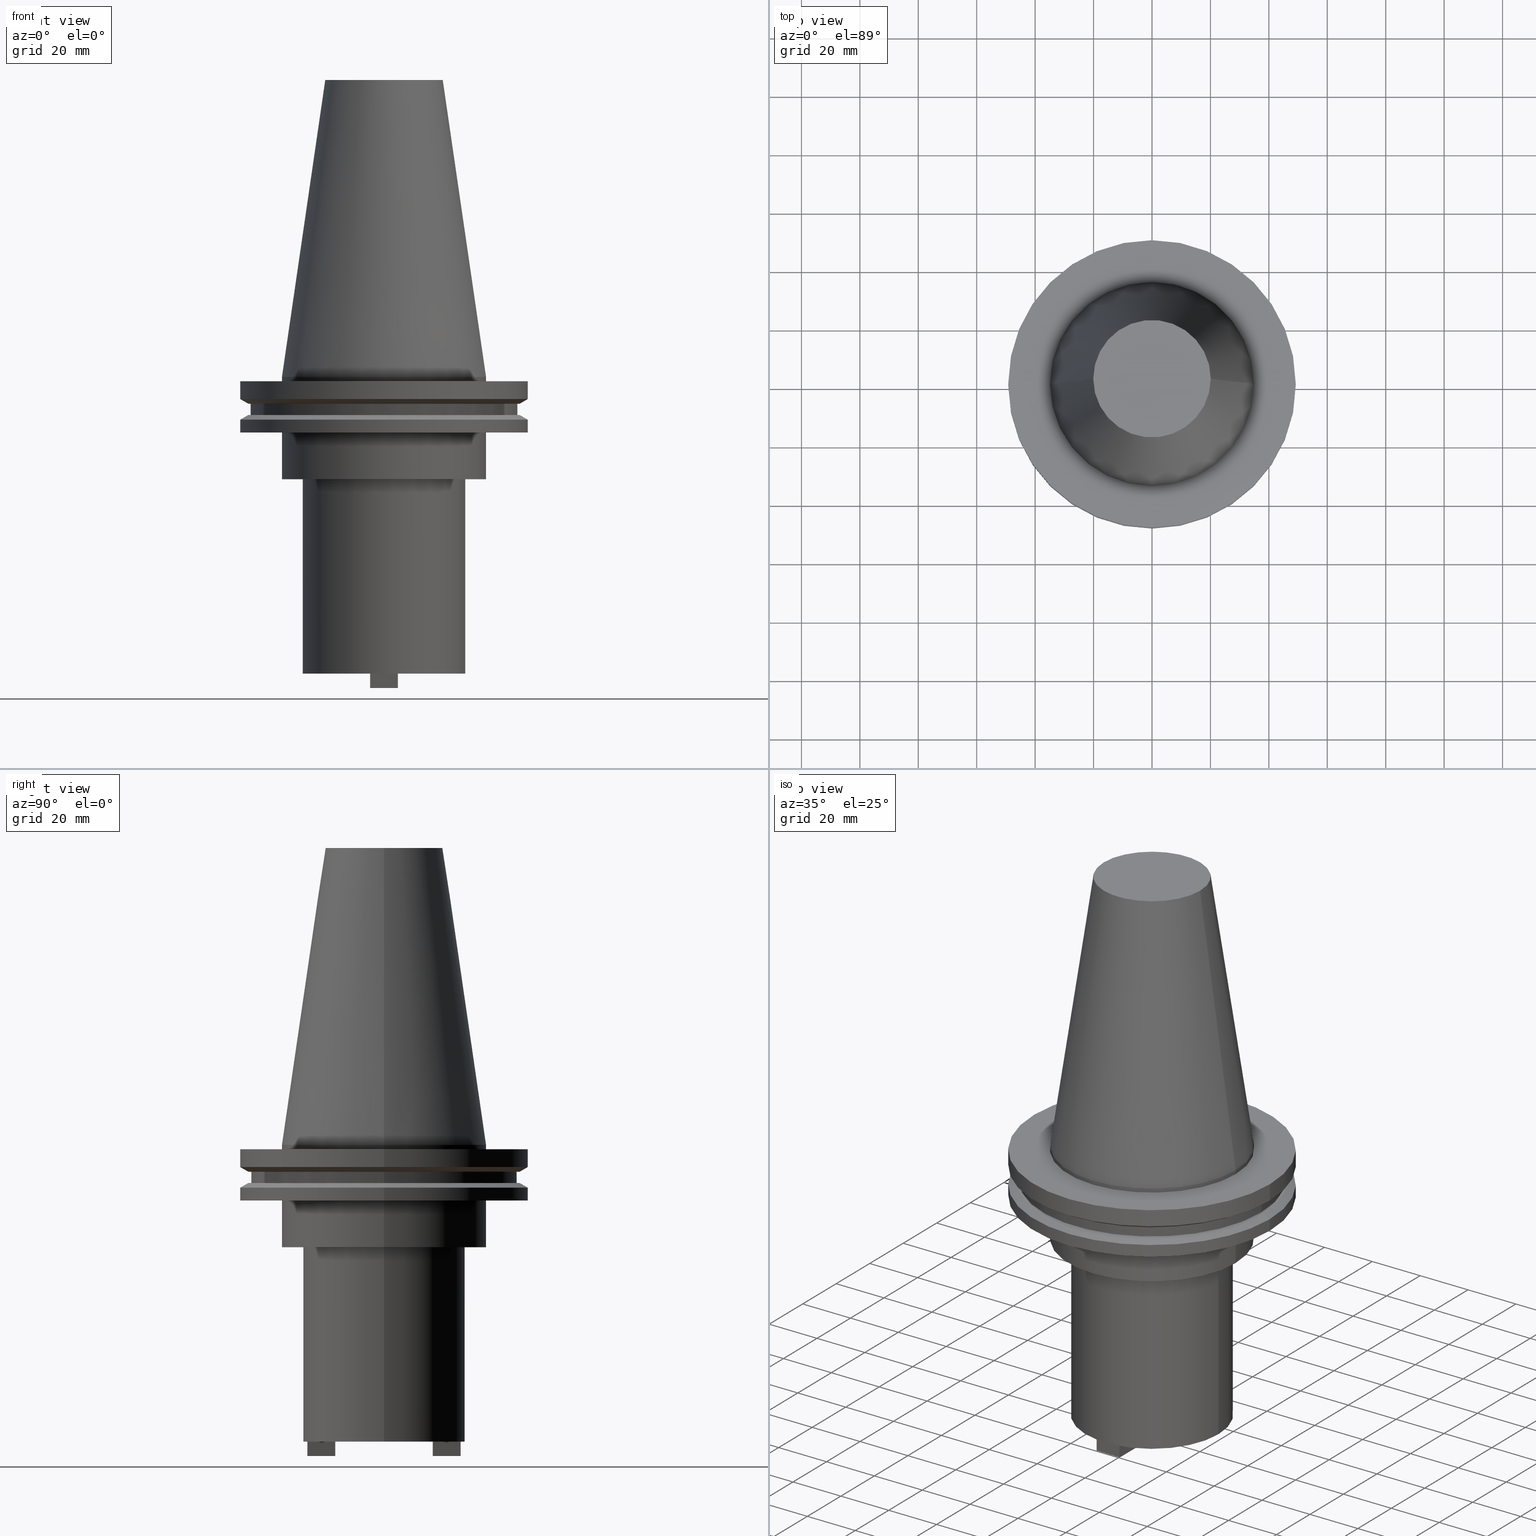
[diagram: canonical four-view strip — front | top / right | iso, engineering-drawing reading convention]
A machine part, canonical four-view strip (front | top / right | iso — engineering-drawing reading convention). The complete STEP part file that produces these views, byte-faithful:
ISO-10303-21;
HEADER;
FILE_DESCRIPTION (( 'STEP AP203' ),
    '1' );
FILE_NAME ('BCV50-SMC1_000-4.stp',
    '2022-03-03T19:53:59',
    ( '' ),
    ( '' ),
    'SwSTEP 2.0',
    'SolidWorks 2021',
    '' );
FILE_SCHEMA (( 'CONFIG_CONTROL_DESIGN' ));
ENDSEC;

DATA;
#1 = EDGE_CURVE ( 'NONE', #269, #75, #1081, .T. ) ;
#2 = CARTESIAN_POINT ( 'NONE',  ( -46.43919780457007818, 0.000000000000000000, -13.05499999999999794 ) ) ;
#3 = FACE_OUTER_BOUND ( 'NONE', #20, .T. ) ;
#4 = ORIENTED_EDGE ( 'NONE', *, *, #239, .T. ) ;
#5 = CARTESIAN_POINT ( 'NONE',  ( -49.21499999999998920, 6.027099222003697037E-15, -14.65761014474876944 ) ) ;
#6 = EDGE_CURVE ( 'NONE', #766, #273, #462, .T. ) ;
#7 = CARTESIAN_POINT ( 'NONE',  ( 0.000000000000000000, 0.000000000000000000, 101.5999999999999943 ) ) ;
#8 = CARTESIAN_POINT ( 'NONE',  ( 0.000000000000000000, 34.92499999999999716, -35.04999999999999716 ) ) ;
#9 = ORIENTED_EDGE ( 'NONE', *, *, #379, .F. ) ;
#10 = COORDINATED_UNIVERSAL_TIME_OFFSET ( 6, 0, .BEHIND. ) ;
#11 = AXIS2_PLACEMENT_3D ( 'NONE', #192, #457, #791 ) ;
#12 = CIRCLE ( 'NONE', #299, 49.21499999999999631 ) ;
#13 = ORGANIZATION ( 'UNSPECIFIED', 'UNSPECIFIED', '' ) ;
#14 = ADVANCED_FACE ( 'NONE', ( #1042 ), #526, .T. ) ;
#15 = FACE_OUTER_BOUND ( 'NONE', #286, .T. ) ;
#16 = ORIENTED_EDGE ( 'NONE', *, *, #546, .F. ) ;
#17 = ORIENTED_EDGE ( 'NONE', *, *, #738, .T. ) ;
#18 = CARTESIAN_POINT ( 'NONE',  ( -4.762500000000019718, -16.68249999999999389, -106.5000000000000000 ) ) ;
#19 = EDGE_CURVE ( 'NONE', #910, #402, #885, .T. ) ;
#20 = EDGE_LOOP ( 'NONE', ( #708, #105, #877, #809 ) ) ;
#21 = ORIENTED_EDGE ( 'NONE', *, *, #1074, .T. ) ;
#22 = FACE_OUTER_BOUND ( 'NONE', #803, .T. ) ;
#23 = ORIENTED_EDGE ( 'NONE', *, *, #191, .T. ) ;
#24 = CARTESIAN_POINT ( 'NONE',  ( -46.43919780457007818, 5.687161494633754392E-15, -9.204999999999991189 ) ) ;
#25 = CIRCLE ( 'NONE', #990, 49.21500000000000341 ) ;
#26 = VECTOR ( 'NONE', #1047, 1000.000000000000000 ) ;
#27 = AXIS2_PLACEMENT_3D ( 'NONE', #828, #222, #144 ) ;
#28 = LINE ( 'NONE', #879, #26 ) ;
#29 = ORIENTED_EDGE ( 'NONE', *, *, #455, .F. ) ;
#30 = PERSON_AND_ORGANIZATION_ROLE ( 'design_supplier' ) ;
#31 = CC_DESIGN_PERSON_AND_ORGANIZATION_ASSIGNMENT ( #435, #354, ( #251 ) ) ;
#32 = ORIENTED_EDGE ( 'NONE', *, *, #539, .F. ) ;
#33 = LINE ( 'NONE', #1039, #338 ) ;
#34 = FACE_OUTER_BOUND ( 'NONE', #287, .T. ) ;
#35 = EDGE_LOOP ( 'NONE', ( #4, #164 ) ) ;
#36 = DATE_AND_TIME ( #204, #872 ) ;
#37 = ORIENTED_EDGE ( 'NONE', *, *, #902, .T. ) ;
#38 = CARTESIAN_POINT ( 'NONE',  ( 4.762499999999981526, 26.20750000000001734, -106.5000000000000000 ) ) ;
#39 = EDGE_CURVE ( 'NONE', #75, #269, #111, .T. ) ;
#40 = DIRECTION ( 'NONE',  ( 6.374311985216615162E-16, -1.000000000000000000, 0.000000000000000000 ) ) ;
#41 = ORIENTED_EDGE ( 'NONE', *, *, #184, .F. ) ;
#42 = LINE ( 'NONE', #293, #65 ) ;
#43 = AXIS2_PLACEMENT_3D ( 'NONE', #142, #729, #488 ) ;
#44 = CC_DESIGN_PERSON_AND_ORGANIZATION_ASSIGNMENT ( #260, #431, ( #746 ) ) ;
#45 = AXIS2_PLACEMENT_3D ( 'NONE', #1013, #240, #1086 ) ;
#46 = CARTESIAN_POINT ( 'NONE',  ( 0.000000000000000000, 0.000000000000000000, -35.04999999999999716 ) ) ;
#47 = AXIS2_PLACEMENT_3D ( 'NONE', #416, #750, #925 ) ;
#48 = ORIENTED_EDGE ( 'NONE', *, *, #473, .T. ) ;
#49 = ORIENTED_EDGE ( 'NONE', *, *, #239, .F. ) ;
#50 = CARTESIAN_POINT ( 'NONE',  ( 0.000000000000000000, 0.000000000000000000, -101.5999999999999943 ) ) ;
#51 = DIRECTION ( 'NONE',  ( -0.000000000000000000, -0.000000000000000000, 1.000000000000000000 ) ) ;
#52 = CARTESIAN_POINT ( 'NONE',  ( 0.000000000000000000, 0.000000000000000000, -35.04999999999999716 ) ) ;
#53 = EDGE_CURVE ( 'NONE', #258, #822, #384, .T. ) ;
#54 = VERTEX_POINT ( 'NONE', #863 ) ;
#55 = DIRECTION ( 'NONE',  ( 1.000000000000000000, 0.000000000000000000, 0.000000000000000000 ) ) ;
#56 = DIRECTION ( 'NONE',  ( -1.000000000000000000, 0.000000000000000000, -0.000000000000000000 ) ) ;
#57 = CARTESIAN_POINT ( 'NONE',  ( 4.762499999999981526, 26.20750000000001734, -101.5999999999999943 ) ) ;
#58 = EDGE_CURVE ( 'NONE', #752, #106, #698, .T. ) ;
#59 = VERTEX_POINT ( 'NONE', #721 ) ;
#60 = CARTESIAN_POINT ( 'NONE',  ( 0.000000000000000000, 0.000000000000000000, -14.65761014474876944 ) ) ;
#61 = VECTOR ( 'NONE', #405, 1000.000000000000000 ) ;
#62 = DIRECTION ( 'NONE',  ( 1.000000000000000000, 0.000000000000000000, 0.000000000000000000 ) ) ;
#63 = CONICAL_SURFACE ( 'NONE', #674, 46.43919780457007818, 1.047197551196575205 ) ;
#64 = CARTESIAN_POINT ( 'NONE',  ( -45.64500000000000313, 5.589900314708094957E-15, -13.05499999999999794 ) ) ;
#65 = VECTOR ( 'NONE', #961, 1000.000000000000000 ) ;
#66 = VERTEX_POINT ( 'NONE', #831 ) ;
#67 = DIRECTION ( 'NONE',  ( -1.456985596620939003E-15, -1.000000000000000000, 0.000000000000000000 ) ) ;
#68 = LINE ( 'NONE', #400, #81 ) ;
#69 = DIRECTION ( 'NONE',  ( -0.000000000000000000, -0.000000000000000000, 1.000000000000000000 ) ) ;
#70 = EDGE_LOOP ( 'NONE', ( #122, #666 ) ) ;
#71 = DIRECTION ( 'NONE',  ( -2.731847993664259274E-16, 1.000000000000000000, 0.000000000000000000 ) ) ;
#72 = EDGE_CURVE ( 'NONE', #759, #453, #722, .T. ) ;
#73 = DIRECTION ( 'NONE',  ( -0.000000000000000000, -0.000000000000000000, 1.000000000000000000 ) ) ;
#74 = CARTESIAN_POINT ( 'NONE',  ( 0.000000000000000000, 0.000000000000000000, -9.204999999999991189 ) ) ;
#75 = VERTEX_POINT ( 'NONE', #566 ) ;
#76 = CYLINDRICAL_SURFACE ( 'NONE', #27, 34.92499999999999716 ) ;
#77 = CARTESIAN_POINT ( 'NONE',  ( 0.000000000000000000, 0.000000000000000000, -19.04999999999999716 ) ) ;
#78 = ADVANCED_FACE ( 'NONE', ( #892 ), #471, .T. ) ;
#79 = DIRECTION ( 'NONE',  ( 1.000000000000000000, 0.000000000000000000, 0.000000000000000000 ) ) ;
#80 = CIRCLE ( 'NONE', #512, 46.43919780457007818 ) ;
#81 = VECTOR ( 'NONE', #733, 1000.000000000000000 ) ;
#82 = VERTEX_POINT ( 'NONE', #989 ) ;
#83 = CARTESIAN_POINT ( 'NONE',  ( 0.000000000000000000, 0.000000000000000000, -14.65761014474876944 ) ) ;
#84 = AXIS2_PLACEMENT_3D ( 'NONE', #878, #218, #140 ) ;
#85 = DIRECTION ( 'NONE',  ( 1.000000000000000000, 0.000000000000000000, 0.000000000000000000 ) ) ;
#86 = DIRECTION ( 'NONE',  ( 1.000000000000000000, 0.000000000000000000, 0.000000000000000000 ) ) ;
#87 = ORIENTED_EDGE ( 'NONE', *, *, #305, .F. ) ;
#88 = ADVANCED_FACE ( 'NONE', ( #401 ), #1027, .T. ) ;
#89 = CARTESIAN_POINT ( 'NONE',  ( -20.10819343178871321, 0.000000000000000000, 101.5999999999999801 ) ) ;
#90 = DIRECTION ( 'NONE',  ( 0.000000000000000000, 0.000000000000000000, -1.000000000000000000 ) ) ;
#91 = PLANE ( 'NONE',  #1010 ) ;
#92 = VERTEX_POINT ( 'NONE', #747 ) ;
#93 = EDGE_CURVE ( 'NONE', #505, #752, #411, .T. ) ;
#94 = DIRECTION ( 'NONE',  ( 1.000000000000000000, 0.000000000000000000, 0.000000000000000000 ) ) ;
#95 = CARTESIAN_POINT ( 'NONE',  ( 4.762499999999986855, 16.68250000000001876, -106.5000000000000000 ) ) ;
#96 = EDGE_LOOP ( 'NONE', ( #548, #579, #373, #677 ) ) ;
#97 = DATE_AND_TIME ( #781, #995 ) ;
#98 = CONICAL_SURFACE ( 'NONE', #1046, 34.92499999999999005, 0.1448138465474119452 ) ;
#99 = AXIS2_PLACEMENT_3D ( 'NONE', #112, #448, #784 ) ;
#100 = DIRECTION ( 'NONE',  ( 0.000000000000000000, -0.000000000000000000, 1.000000000000000000 ) ) ;
#101 = ORIENTED_EDGE ( 'NONE', *, *, #702, .T. ) ;
#102 = DATE_TIME_ROLE ( 'creation_date' ) ;
#103 = EDGE_CURVE ( 'NONE', #854, #766, #25, .T. ) ;
#104 = DIRECTION ( 'NONE',  ( -0.000000000000000000, -0.000000000000000000, 1.000000000000000000 ) ) ;
#105 = ORIENTED_EDGE ( 'NONE', *, *, #917, .F. ) ;
#106 = VERTEX_POINT ( 'NONE', #138 ) ;
#107 = CARTESIAN_POINT ( 'NONE',  ( 4.762499999999986855, 16.68250000000002231, -101.5999999999999943 ) ) ;
#108 = EDGE_CURVE ( 'NONE', #693, #976, #224, .T. ) ;
#109 = EDGE_LOOP ( 'NONE', ( #21, #740, #615, #544 ) ) ;
#110 =( NAMED_UNIT ( * ) SI_UNIT ( $, .STERADIAN. ) SOLID_ANGLE_UNIT ( ) );
#111 = CIRCLE ( 'NONE', #145, 27.80030000000000001 ) ;
#112 = CARTESIAN_POINT ( 'NONE',  ( 0.000000000000000000, 0.000000000000000000, -1.499999999999987566 ) ) ;
#113 = AXIS2_PLACEMENT_3D ( 'NONE', #352, #626, #461 ) ;
#114 = AXIS2_PLACEMENT_3D ( 'NONE', #646, #981, #297 ) ;
#115 = VECTOR ( 'NONE', #630, 1000.000000000000000 ) ;
#116 = PLANE ( 'NONE',  #622 ) ;
#117 = DIRECTION ( 'NONE',  ( 0.000000000000000000, 0.000000000000000000, -1.000000000000000000 ) ) ;
#118 = ADVANCED_FACE ( 'NONE', ( #979 ), #324, .T. ) ;
#119 = ORIENTED_EDGE ( 'NONE', *, *, #232, .F. ) ;
#120 = PLANE ( 'NONE',  #114 ) ;
#121 = CARTESIAN_POINT ( 'NONE',  ( -4.762500000000017941, 26.20750000000002089, -106.5000000000000000 ) ) ;
#122 = ORIENTED_EDGE ( 'NONE', *, *, #755, .F. ) ;
#123 = VERTEX_POINT ( 'NONE', #1070 ) ;
#124 = FACE_BOUND ( 'NONE', #70, .T. ) ;
#125 = EDGE_CURVE ( 'NONE', #106, #402, #653, .T. ) ;
#126 = DIRECTION ( 'NONE',  ( -1.000000000000000000, -6.374311985216615162E-16, 0.000000000000000000 ) ) ;
#127 = VERTEX_POINT ( 'NONE', #64 ) ;
#128 = EDGE_LOOP ( 'NONE', ( #150, #787, #371, #221 ) ) ;
#129 = LINE ( 'NONE', #725, #818 ) ;
#130 = AXIS2_PLACEMENT_3D ( 'NONE', #318, #984, #477 ) ;
#131 = VECTOR ( 'NONE', #875, 999.9999999999998863 ) ;
#132 = EDGE_CURVE ( 'NONE', #434, #453, #390, .T. ) ;
#133 = CARTESIAN_POINT ( 'NONE',  ( -45.64500000000000313, 5.589900314708094957E-15, -9.204999999999991189 ) ) ;
#134 = AXIS2_PLACEMENT_3D ( 'NONE', #243, #226, #671 ) ;
#135 = ORIENTED_EDGE ( 'NONE', *, *, #291, .T. ) ;
#136 = DIRECTION ( 'NONE',  ( -0.000000000000000000, -0.000000000000000000, 1.000000000000000000 ) ) ;
#137 = DIRECTION ( 'NONE',  ( 1.000000000000000000, 0.000000000000000000, 0.000000000000000000 ) ) ;
#138 = CARTESIAN_POINT ( 'NONE',  ( -4.762500000000017941, 26.20750000000002444, -101.5999999999999943 ) ) ;
#139 = ORIENTED_EDGE ( 'NONE', *, *, #455, .T. ) ;
#140 = DIRECTION ( 'NONE',  ( 1.000000000000000000, 0.000000000000000000, 0.000000000000000000 ) ) ;
#141 = DIRECTION ( 'NONE',  ( 1.000000000000000000, 0.000000000000000000, 0.000000000000000000 ) ) ;
#142 = CARTESIAN_POINT ( 'NONE',  ( 0.000000000000000000, 0.000000000000000000, 0.000000000000000000 ) ) ;
#143 = ORIENTED_EDGE ( 'NONE', *, *, #369, .F. ) ;
#144 = DIRECTION ( 'NONE',  ( 1.000000000000000000, 0.000000000000000000, 0.000000000000000000 ) ) ;
#145 = AXIS2_PLACEMENT_3D ( 'NONE', #52, #117, #636 ) ;
#146 = LINE ( 'NONE', #715, #779 ) ;
#147 = CIRCLE ( 'NONE', #1082, 45.64500000000000313 ) ;
#148 = CARTESIAN_POINT ( 'NONE',  ( 0.000000000000000000, 0.000000000000000000, -101.5999999999999943 ) ) ;
#149 = LOCAL_TIME ( 13, 53, 59.00000000000000000, #10 ) ;
#150 = ORIENTED_EDGE ( 'NONE', *, *, #871, .F. ) ;
#151 = CARTESIAN_POINT ( 'NONE',  ( -4.762500000000017053, -26.20750000000000668, -106.5000000000000000 ) ) ;
#152 = ADVANCED_FACE ( 'NONE', ( #1064 ), #909, .F. ) ;
#153 = DIRECTION ( 'NONE',  ( -0.000000000000000000, -0.000000000000000000, 1.000000000000000000 ) ) ;
#154 = DIRECTION ( 'NONE',  ( 1.000000000000000000, -3.642463991552351451E-16, 0.000000000000000000 ) ) ;
#155 = ORIENTED_EDGE ( 'NONE', *, *, #619, .F. ) ;
#156 = LINE ( 'NONE', #161, #179 ) ;
#157 = EDGE_CURVE ( 'NONE', #419, #804, #937, .T. ) ;
#158 = CARTESIAN_POINT ( 'NONE',  ( 34.92499999999999716, 0.000000000000000000, 101.5999999999999943 ) ) ;
#159 = DIRECTION ( 'NONE',  ( -1.000000000000000000, 0.000000000000000000, 0.000000000000000000 ) ) ;
#160 = ORIENTED_EDGE ( 'NONE', *, *, #58, .T. ) ;
#161 = CARTESIAN_POINT ( 'NONE',  ( 4.762499999999988631, -26.20750000000000668, -106.5000000000000000 ) ) ;
#162 = LINE ( 'NONE', #409, #481 ) ;
#163 = FACE_BOUND ( 'NONE', #249, .T. ) ;
#164 = ORIENTED_EDGE ( 'NONE', *, *, #862, .T. ) ;
#165 = CARTESIAN_POINT ( 'NONE',  ( 0.000000000000000000, 0.000000000000000000, 101.5999999999999801 ) ) ;
#166 = VECTOR ( 'NONE', #625, 1000.000000000000114 ) ;
#167 = LINE ( 'NONE', #24, #571 ) ;
#168 = DIRECTION ( 'NONE',  ( 1.000000000000000000, 0.000000000000000000, 0.000000000000000000 ) ) ;
#169 = EDGE_LOOP ( 'NONE', ( #616, #37, #627, #629 ) ) ;
#170 = CARTESIAN_POINT ( 'NONE',  ( 0.000000000000000000, 0.000000000000000000, -7.602389855251287187 ) ) ;
#171 = CYLINDRICAL_SURFACE ( 'NONE', #887, 49.21499999999999631 ) ;
#172 = PLANE ( 'NONE',  #443 ) ;
#173 = ORIENTED_EDGE ( 'NONE', *, *, #654, .F. ) ;
#174 = COORDINATED_UNIVERSAL_TIME_OFFSET ( 6, 0, .BEHIND. ) ;
#175 = FACE_OUTER_BOUND ( 'NONE', #343, .T. ) ;
#176 = DATE_AND_TIME ( #934, #1048 ) ;
#177 = VECTOR ( 'NONE', #926, 1000.000000000000000 ) ;
#178 = AXIS2_PLACEMENT_3D ( 'NONE', #868, #278, #450 ) ;
#179 = VECTOR ( 'NONE', #986, 1000.000000000000000 ) ;
#180 = EDGE_CURVE ( 'NONE', #281, #453, #649, .T. ) ;
#181 = DIRECTION ( 'NONE',  ( -2.731847993664259767E-16, 1.000000000000000000, 0.000000000000000000 ) ) ;
#182 = EDGE_LOOP ( 'NONE', ( #479, #662, #366, #952 ) ) ;
#183 = PERSON_AND_ORGANIZATION_ROLE ( 'creator' ) ;
#184 = EDGE_CURVE ( 'NONE', #453, #759, #265, .T. ) ;
#185 = PLANE ( 'NONE',  #640 ) ;
#186 = DIRECTION ( 'NONE',  ( -1.000000000000000000, 3.642463991552348493E-16, 0.000000000000000000 ) ) ;
#187 = PERSON_AND_ORGANIZATION ( #944, #13 ) ;
#188 = EDGE_LOOP ( 'NONE', ( #597, #263, #533, #600 ) ) ;
#189 = DIRECTION ( 'NONE',  ( -0.000000000000000000, -0.000000000000000000, 1.000000000000000000 ) ) ;
#190 = FACE_OUTER_BOUND ( 'NONE', #543, .T. ) ;
#191 = EDGE_CURVE ( 'NONE', #502, #976, #972, .T. ) ;
#192 = CARTESIAN_POINT ( 'NONE',  ( 0.000000000000000000, 0.000000000000000000, -35.04999999999999716 ) ) ;
#193 = VECTOR ( 'NONE', #467, 1000.000000000000000 ) ;
#194 = ORIENTED_EDGE ( 'NONE', *, *, #1007, .T. ) ;
#195 = LINE ( 'NONE', #918, #589 ) ;
#196 =( GEOMETRIC_REPRESENTATION_CONTEXT ( 3 ) GLOBAL_UNCERTAINTY_ASSIGNED_CONTEXT ( ( #344 ) ) GLOBAL_UNIT_ASSIGNED_CONTEXT ( ( #611, #1025, #110 ) ) REPRESENTATION_CONTEXT ( 'NONE', 'WORKASPACE' ) );
#197 = FACE_BOUND ( 'NONE', #1071, .T. ) ;
#198 = ORIENTED_EDGE ( 'NONE', *, *, #561, .T. ) ;
#199 = CC_DESIGN_PERSON_AND_ORGANIZATION_ASSIGNMENT ( #943, #1017, ( #1037 ) ) ;
#200 = ORIENTED_EDGE ( 'NONE', *, *, #782, .T. ) ;
#201 = CYLINDRICAL_SURFACE ( 'NONE', #84, 5.754999999999994564 ) ;
#202 = DIRECTION ( 'NONE',  ( -0.000000000000000000, -0.000000000000000000, 1.000000000000000000 ) ) ;
#203 = EDGE_LOOP ( 'NONE', ( #451, #225, #985, #198 ) ) ;
#204 = CALENDAR_DATE ( 2022, 3, 3 ) ;
#205 = EDGE_LOOP ( 'NONE', ( #783, #563, #41, #858 ) ) ;
#206 = DIRECTION ( 'NONE',  ( 0.000000000000000000, -0.000000000000000000, 1.000000000000000000 ) ) ;
#207 = CARTESIAN_POINT ( 'NONE',  ( -27.80030000000000001, 3.404554841033616429E-15, -101.5999999999999943 ) ) ;
#208 = ORIENTED_EDGE ( 'NONE', *, *, #782, .F. ) ;
#209 = ORIENTED_EDGE ( 'NONE', *, *, #399, .T. ) ;
#210 = CARTESIAN_POINT ( 'NONE',  ( 0.000000000000000000, 49.21499999999998920, -19.04999999999999716 ) ) ;
#211 = EDGE_CURVE ( 'NONE', #621, #468, #80, .T. ) ;
#212 = CIRCLE ( 'NONE', #394, 5.755000000000006111 ) ;
#213 = CIRCLE ( 'NONE', #605, 49.21499999999998920 ) ;
#214 = DIRECTION ( 'NONE',  ( -0.000000000000000000, -0.000000000000000000, 1.000000000000000000 ) ) ;
#215 = AXIS2_PLACEMENT_3D ( 'NONE', #210, #206, #55 ) ;
#216 = DIRECTION ( 'NONE',  ( -0.000000000000000000, -0.000000000000000000, 1.000000000000000000 ) ) ;
#217 = ORIENTED_EDGE ( 'NONE', *, *, #774, .T. ) ;
#218 = DIRECTION ( 'NONE',  ( -0.000000000000000000, -0.000000000000000000, 1.000000000000000000 ) ) ;
#219 = DIRECTION ( 'NONE',  ( -0.000000000000000000, -0.000000000000000000, 1.000000000000000000 ) ) ;
#220 = DIRECTION ( 'NONE',  ( -0.000000000000000000, -0.000000000000000000, 1.000000000000000000 ) ) ;
#221 = ORIENTED_EDGE ( 'NONE', *, *, #72, .F. ) ;
#222 = DIRECTION ( 'NONE',  ( -0.000000000000000000, -0.000000000000000000, 1.000000000000000000 ) ) ;
#223 = CARTESIAN_POINT ( 'NONE',  ( 5.754999999999994564, 0.000000000000000000, 0.000000000000000000 ) ) ;
#224 = LINE ( 'NONE', #1075, #795 ) ;
#225 = ORIENTED_EDGE ( 'NONE', *, *, #19, .F. ) ;
#226 = DIRECTION ( 'NONE',  ( -0.000000000000000000, -0.000000000000000000, 1.000000000000000000 ) ) ;
#227 = VECTOR ( 'NONE', #734, 1000.000000000000000 ) ;
#228 = CARTESIAN_POINT ( 'NONE',  ( 46.43919780457007818, 0.000000000000000000, -9.204999999999991189 ) ) ;
#229 = CIRCLE ( 'NONE', #178, 34.92499999999999716 ) ;
#230 = CARTESIAN_POINT ( 'NONE',  ( 34.92499999999999005, 0.000000000000000000, 101.5999999999999943 ) ) ;
#231 = VECTOR ( 'NONE', #475, 1000.000000000000000 ) ;
#232 = EDGE_CURVE ( 'NONE', #66, #92, #236, .T. ) ;
#233 = ORIENTED_EDGE ( 'NONE', *, *, #58, .F. ) ;
#234 = DIRECTION ( 'NONE',  ( -0.000000000000000000, -0.000000000000000000, 1.000000000000000000 ) ) ;
#235 = CARTESIAN_POINT ( 'NONE',  ( 0.000000000000000000, 0.000000000000000000, 101.5999999999999943 ) ) ;
#236 = LINE ( 'NONE', #914, #866 ) ;
#237 = ORIENTED_EDGE ( 'NONE', *, *, #830, .F. ) ;
#238 = CARTESIAN_POINT ( 'NONE',  ( 49.21499999999998920, 0.000000000000000000, 101.5999999999999943 ) ) ;
#239 = EDGE_CURVE ( 'NONE', #1049, #82, #212, .T. ) ;
#240 = DIRECTION ( 'NONE',  ( -0.000000000000000000, -0.000000000000000000, 1.000000000000000000 ) ) ;
#241 = DIRECTION ( 'NONE',  ( -0.000000000000000000, -0.000000000000000000, 1.000000000000000000 ) ) ;
#242 = EDGE_LOOP ( 'NONE', ( #29, #49, #998, #494 ) ) ;
#243 = CARTESIAN_POINT ( 'NONE',  ( 0.000000000000000000, 0.000000000000000000, -101.5999999999999943 ) ) ;
#244 = EDGE_CURVE ( 'NONE', #976, #502, #587, .T. ) ;
#245 = FACE_OUTER_BOUND ( 'NONE', #827, .T. ) ;
#246 = AXIS2_PLACEMENT_3D ( 'NONE', #870, #380, #711 ) ;
#247 = FACE_OUTER_BOUND ( 'NONE', #704, .T. ) ;
#248 = AXIS2_PLACEMENT_3D ( 'NONE', #170, #350, #771 ) ;
#249 = EDGE_LOOP ( 'NONE', ( #233, #397, #718, #680 ) ) ;
#250 = ORIENTED_EDGE ( 'NONE', *, *, #369, .T. ) ;
#251 = SECURITY_CLASSIFICATION ( '', '', #776 ) ;
#252 = CARTESIAN_POINT ( 'NONE',  ( -27.80030000000000001, 3.404554841033616429E-15, 0.000000000000000000 ) ) ;
#253 = EDGE_CURVE ( 'NONE', #854, #54, #773, .T. ) ;
#254 = DIRECTION ( 'NONE',  ( 1.000000000000000000, 2.731847993664259767E-16, 0.000000000000000000 ) ) ;
#255 = ORIENTED_EDGE ( 'NONE', *, *, #554, .F. ) ;
#256 = APPLICATION_PROTOCOL_DEFINITION ( 'international standard', 'config_control_design', 1994, #987 ) ;
#257 = CARTESIAN_POINT ( 'NONE',  ( 20.10819343178871321, 3.369811209154858606E-15, 101.5999999999999801 ) ) ;
#258 = VERTEX_POINT ( 'NONE', #930 ) ;
#259 = EDGE_CURVE ( 'NONE', #1058, #968, #355, .T. ) ;
#260 = PERSON_AND_ORGANIZATION ( #944, #13 ) ;
#261 = ORIENTED_EDGE ( 'NONE', *, *, #554, .T. ) ;
#262 = DIRECTION ( 'NONE',  ( -0.000000000000000000, -0.000000000000000000, 1.000000000000000000 ) ) ;
#263 = ORIENTED_EDGE ( 'NONE', *, *, #531, .F. ) ;
#264 = APPROVAL_STATUS ( 'not_yet_approved' ) ;
#265 = CIRCLE ( 'NONE', #43, 34.92499999999999005 ) ;
#266 = VECTOR ( 'NONE', #1057, 1000.000000000000000 ) ;
#267 = CIRCLE ( 'NONE', #319, 34.92499999999999005 ) ;
#268 = DIRECTION ( 'NONE',  ( 1.000000000000000000, 0.000000000000000000, 0.000000000000000000 ) ) ;
#269 = VERTEX_POINT ( 'NONE', #670 ) ;
#270 = COORDINATED_UNIVERSAL_TIME_OFFSET ( 6, 0, .BEHIND. ) ;
#271 = DIRECTION ( 'NONE',  ( 1.000000000000000000, 0.000000000000000000, 0.000000000000000000 ) ) ;
#272 = FACE_OUTER_BOUND ( 'NONE', #1024, .T. ) ;
#273 = VERTEX_POINT ( 'NONE', #769 ) ;
#274 = APPROVAL_DATE_TIME ( #36, #581 ) ;
#275 = EDGE_LOOP ( 'NONE', ( #690, #549 ) ) ;
#276 = FACE_OUTER_BOUND ( 'NONE', #169, .T. ) ;
#277 = PRODUCT_DEFINITION ( 'UNKNOWN', '', #746, #753 ) ;
#278 = DIRECTION ( 'NONE',  ( -0.000000000000000000, -0.000000000000000000, 1.000000000000000000 ) ) ;
#279 = CARTESIAN_POINT ( 'NONE',  ( -4.762500000000017941, 26.20750000000002089, -101.5999999999999943 ) ) ;
#280 = AXIS2_PLACEMENT_3D ( 'NONE', #342, #679, #857 ) ;
#281 = VERTEX_POINT ( 'NONE', #257 ) ;
#282 = DIRECTION ( 'NONE',  ( 1.000000000000000000, 0.000000000000000000, 0.000000000000000000 ) ) ;
#283 = AXIS2_PLACEMENT_3D ( 'NONE', #378, #289, #1041 ) ;
#284 = CC_DESIGN_APPROVAL ( #1020, ( #277 ) ) ;
#285 = DIRECTION ( 'NONE',  ( 6.374311985216615162E-16, -1.000000000000000000, 0.000000000000000000 ) ) ;
#286 = EDGE_LOOP ( 'NONE', ( #557, #992 ) ) ;
#287 = EDGE_LOOP ( 'NONE', ( #522, #792 ) ) ;
#288 = FACE_OUTER_BOUND ( 'NONE', #963, .T. ) ;
#289 = DIRECTION ( 'NONE',  ( -0.000000000000000000, -0.000000000000000000, 1.000000000000000000 ) ) ;
#290 = DIRECTION ( 'NONE',  ( -0.000000000000000000, -0.000000000000000000, 1.000000000000000000 ) ) ;
#291 = EDGE_CURVE ( 'NONE', #980, #695, #901, .T. ) ;
#292 = ORIENTED_EDGE ( 'NONE', *, *, #524, .F. ) ;
#293 = CARTESIAN_POINT ( 'NONE',  ( -34.92499999999999005, 4.277078946022130098E-15, 101.5999999999999943 ) ) ;
#294 = DIRECTION ( 'NONE',  ( -0.000000000000000000, -0.000000000000000000, 1.000000000000000000 ) ) ;
#295 = ORIENTED_EDGE ( 'NONE', *, *, #673, .F. ) ;
#296 = ORIENTED_EDGE ( 'NONE', *, *, #478, .F. ) ;
#297 = DIRECTION ( 'NONE',  ( 1.000000000000000000, 0.000000000000000000, -0.000000000000000000 ) ) ;
#298 = AXIS2_PLACEMENT_3D ( 'NONE', #845, #100, #86 ) ;
#299 = AXIS2_PLACEMENT_3D ( 'NONE', #691, #865, #497 ) ;
#300 = CARTESIAN_POINT ( 'NONE',  ( 0.000000000000000000, 45.64500000000000313, -13.05499999999999794 ) ) ;
#301 = AXIS2_PLACEMENT_3D ( 'NONE', #921, #501, #840 ) ;
#302 = CARTESIAN_POINT ( 'NONE',  ( 0.000000000000000000, 0.000000000000000000, 101.5999999999999943 ) ) ;
#303 = ORIENTED_EDGE ( 'NONE', *, *, #524, .T. ) ;
#304 = FACE_OUTER_BOUND ( 'NONE', #593, .T. ) ;
#305 = EDGE_CURVE ( 'NONE', #1088, #463, #932, .T. ) ;
#306 = CARTESIAN_POINT ( 'NONE',  ( 0.000000000000000000, 0.000000000000000000, 0.000000000000000000 ) ) ;
#307 = CARTESIAN_POINT ( 'NONE',  ( 4.762499999999981526, 26.20750000000001734, -106.5000000000000000 ) ) ;
#308 = ORIENTED_EDGE ( 'NONE', *, *, #619, .T. ) ;
#309 = DIRECTION ( 'NONE',  ( -0.000000000000000000, -0.000000000000000000, 1.000000000000000000 ) ) ;
#310 = DIRECTION ( 'NONE',  ( -1.000000000000000000, 0.000000000000000000, 0.000000000000000000 ) ) ;
#311 = ADVANCED_FACE ( 'NONE', ( #175 ), #504, .F. ) ;
#312 = DIRECTION ( 'NONE',  ( 1.000000000000000000, 0.000000000000000000, 0.000000000000000000 ) ) ;
#313 = ORIENTED_EDGE ( 'NONE', *, *, #596, .T. ) ;
#314 = PLANE ( 'NONE',  #301 ) ;
#315 = VECTOR ( 'NONE', #186, 1000.000000000000000 ) ;
#316 = CYLINDRICAL_SURFACE ( 'NONE', #514, 49.21499999999998920 ) ;
#317 = VECTOR ( 'NONE', #40, 1000.000000000000000 ) ;
#318 = CARTESIAN_POINT ( 'NONE',  ( 0.000000000000000000, 0.000000000000000000, 0.000000000000000000 ) ) ;
#319 = AXIS2_PLACEMENT_3D ( 'NONE', #929, #844, #94 ) ;
#320 = ORIENTED_EDGE ( 'NONE', *, *, #387, .T. ) ;
#321 = ADVANCED_FACE ( 'NONE', ( #852 ), #520, .T. ) ;
#322 = DIRECTION ( 'NONE',  ( 0.000000000000000000, 1.000000000000000000, 0.000000000000000000 ) ) ;
#323 = DIRECTION ( 'NONE',  ( 1.000000000000000000, 0.000000000000000000, 0.000000000000000000 ) ) ;
#324 = CYLINDRICAL_SURFACE ( 'NONE', #742, 34.92499999999999005 ) ;
#325 = ORIENTED_EDGE ( 'NONE', *, *, #211, .T. ) ;
#326 = CARTESIAN_POINT ( 'NONE',  ( -4.762500000000017053, -26.20750000000000668, -101.5999999999999943 ) ) ;
#327 = ADVANCED_FACE ( 'NONE', ( #163, #15, #329, #838 ), #509, .F. ) ;
#328 = DIRECTION ( 'NONE',  ( -0.000000000000000000, -0.000000000000000000, 1.000000000000000000 ) ) ;
#329 = FACE_BOUND ( 'NONE', #35, .T. ) ;
#330 = ORIENTED_EDGE ( 'NONE', *, *, #917, .T. ) ;
#331 = PLANE ( 'NONE',  #744 ) ;
#332 = ORIENTED_EDGE ( 'NONE', *, *, #760, .T. ) ;
#333 = ADVANCED_FACE ( 'NONE', ( #3 ), #91, .F. ) ;
#334 = DIRECTION ( 'NONE',  ( 1.000000000000000000, 0.000000000000000000, 0.000000000000000000 ) ) ;
#335 = CIRCLE ( 'NONE', #955, 49.21499999999998920 ) ;
#336 = DIRECTION ( 'NONE',  ( -1.000000000000000000, 0.000000000000000000, 0.000000000000000000 ) ) ;
#337 = CIRCLE ( 'NONE', #1063, 20.10819343178871321 ) ;
#338 = VECTOR ( 'NONE', #1060, 1000.000000000000000 ) ;
#339 = ORIENTED_EDGE ( 'NONE', *, *, #259, .F. ) ;
#340 = APPLICATION_PROTOCOL_DEFINITION ( 'international standard', 'config_control_design', 1994, #559 ) ;
#341 = ORIENTED_EDGE ( 'NONE', *, *, #732, .F. ) ;
#342 = CARTESIAN_POINT ( 'NONE',  ( 0.000000000000000000, 0.000000000000000000, -9.204999999999991189 ) ) ;
#343 = EDGE_LOOP ( 'NONE', ( #586, #87, #406, #261 ) ) ;
#344 = UNCERTAINTY_MEASURE_WITH_UNIT (LENGTH_MEASURE( 1.000000000000000082E-05 ), #611, 'distance_accuracy_value', 'NONE');
#345 = PERSON_AND_ORGANIZATION ( #944, #13 ) ;
#346 = ORIENTED_EDGE ( 'NONE', *, *, #259, .T. ) ;
#347 = CARTESIAN_POINT ( 'NONE',  ( 0.000000000000000000, 0.000000000000000000, 0.000000000000000000 ) ) ;
#348 = ADVANCED_FACE ( 'NONE', ( #22 ), #665, .T. ) ;
#349 = ORIENTED_EDGE ( 'NONE', *, *, #478, .T. ) ;
#350 = DIRECTION ( 'NONE',  ( -0.000000000000000000, -0.000000000000000000, 1.000000000000000000 ) ) ;
#351 = ORIENTED_EDGE ( 'NONE', *, *, #668, .F. ) ;
#352 = CARTESIAN_POINT ( 'NONE',  ( 0.000000000000000000, 0.000000000000000000, -13.05499999999999794 ) ) ;
#353 = EDGE_LOOP ( 'NONE', ( #414, #1004, #946, #485 ) ) ;
#354 = PERSON_AND_ORGANIZATION_ROLE ( 'classification_officer' ) ;
#355 = CIRCLE ( 'NONE', #777, 49.21499999999998920 ) ;
#356 = ADVANCED_FACE ( 'NONE', ( #247 ), #765, .T. ) ;
#357 = CARTESIAN_POINT ( 'NONE',  ( -49.21500000000000341, 6.027099222003699404E-15, -7.602389855251287187 ) ) ;
#358 = AXIS2_PLACEMENT_3D ( 'NONE', #977, #454, #805 ) ;
#359 = DIRECTION ( 'NONE',  ( -0.000000000000000000, -0.000000000000000000, 1.000000000000000000 ) ) ;
#360 = ORIENTED_EDGE ( 'NONE', *, *, #53, .T. ) ;
#361 = EDGE_LOOP ( 'NONE', ( #296, #295 ) ) ;
#362 = CARTESIAN_POINT ( 'NONE',  ( 0.000000000000000000, 0.000000000000000000, -9.204999999999991189 ) ) ;
#363 = ADVANCED_FACE ( 'NONE', ( #757 ), #172, .F. ) ;
#364 = CARTESIAN_POINT ( 'NONE',  ( 0.000000000000000000, 46.43919780457007818, -9.204999999999998295 ) ) ;
#365 = CARTESIAN_POINT ( 'NONE',  ( 4.762499999999986855, 16.68250000000001876, -106.5000000000000000 ) ) ;
#366 = ORIENTED_EDGE ( 'NONE', *, *, #184, .T. ) ;
#367 = FACE_OUTER_BOUND ( 'NONE', #893, .T. ) ;
#368 = EDGE_CURVE ( 'NONE', #468, #621, #532, .T. ) ;
#369 = EDGE_CURVE ( 'NONE', #59, #700, #335, .T. ) ;
#370 = CARTESIAN_POINT ( 'NONE',  ( 4.762499999999981526, 26.20750000000001734, -101.5999999999999943 ) ) ;
#371 = ORIENTED_EDGE ( 'NONE', *, *, #132, .T. ) ;
#372 = VECTOR ( 'NONE', #290, 1000.000000000000000 ) ;
#373 = ORIENTED_EDGE ( 'NONE', *, *, #789, .T. ) ;
#374 = LINE ( 'NONE', #719, #166 ) ;
#375 = CIRCLE ( 'NONE', #903, 45.64500000000000313 ) ;
#376 = MANIFOLD_SOLID_BREP ( 'Boss-Extrude1', #1045 ) ;
#377 = CC_DESIGN_APPROVAL ( #661, ( #746 ) ) ;
#378 = CARTESIAN_POINT ( 'NONE',  ( 0.000000000000000000, 0.000000000000000000, -19.04999999999999716 ) ) ;
#379 = EDGE_CURVE ( 'NONE', #683, #953, #797, .T. ) ;
#380 = DIRECTION ( 'NONE',  ( -0.000000000000000000, -0.000000000000000000, 1.000000000000000000 ) ) ;
#381 = ORIENTED_EDGE ( 'NONE', *, *, #1080, .T. ) ;
#382 = CARTESIAN_POINT ( 'NONE',  ( -45.64500000000000313, 5.589900314708094957E-15, 101.5999999999999943 ) ) ;
#383 = CARTESIAN_POINT ( 'NONE',  ( 27.80030000000000001, 0.000000000000000000, 0.000000000000000000 ) ) ;
#384 = LINE ( 'NONE', #365, #315 ) ;
#385 = ADVANCED_FACE ( 'NONE', ( #537 ), #98, .T. ) ;
#386 = EDGE_LOOP ( 'NONE', ( #1021, #839, #500, #1050 ) ) ;
#387 = EDGE_CURVE ( 'NONE', #402, #505, #785, .T. ) ;
#388 = PLANE ( 'NONE',  #836 ) ;
#389 = PLANE ( 'NONE',  #551 ) ;
#390 = LINE ( 'NONE', #230, #685 ) ;
#391 = VERTEX_POINT ( 'NONE', #778 ) ;
#392 = PLANE ( 'NONE',  #215 ) ;
#393 = ADVANCED_FACE ( 'NONE', ( #34, #197 ), #116, .F. ) ;
#394 = AXIS2_PLACEMENT_3D ( 'NONE', #599, #498, #676 ) ;
#395 = DIRECTION ( 'NONE',  ( 1.000000000000000000, -3.642463991552351451E-16, -0.000000000000000000 ) ) ;
#396 = DIRECTION ( 'NONE',  ( 1.000000000000000000, 0.000000000000000000, 0.000000000000000000 ) ) ;
#397 = ORIENTED_EDGE ( 'NONE', *, *, #93, .F. ) ;
#398 = DIRECTION ( 'NONE',  ( 0.000000000000000000, -0.000000000000000000, 1.000000000000000000 ) ) ;
#399 = EDGE_CURVE ( 'NONE', #1066, #759, #962, .T. ) ;
#400 = CARTESIAN_POINT ( 'NONE',  ( -4.762500000000017941, 26.20750000000002089, -106.5000000000000000 ) ) ;
#401 = FACE_OUTER_BOUND ( 'NONE', #182, .T. ) ;
#402 = VERTEX_POINT ( 'NONE', #370 ) ;
#403 = FACE_OUTER_BOUND ( 'NONE', #799, .T. ) ;
#404 = FACE_OUTER_BOUND ( 'NONE', #768, .T. ) ;
#405 = DIRECTION ( 'NONE',  ( 1.000000000000000000, -3.642463991552351451E-16, -0.000000000000000000 ) ) ;
#406 = ORIENTED_EDGE ( 'NONE', *, *, #1074, .F. ) ;
#407 = CYLINDRICAL_SURFACE ( 'NONE', #429, 49.21499999999998920 ) ;
#408 = AXIS2_PLACEMENT_3D ( 'NONE', #74, #739, #1079 ) ;
#409 = CARTESIAN_POINT ( 'NONE',  ( 4.762499999999986855, 16.68250000000001876, -106.5000000000000000 ) ) ;
#410 = VECTOR ( 'NONE', #395, 1000.000000000000000 ) ;
#411 = LINE ( 'NONE', #813, #227 ) ;
#412 = AXIS2_PLACEMENT_3D ( 'NONE', #77, #696, #588 ) ;
#413 = EDGE_CURVE ( 'NONE', #650, #1036, #28, .T. ) ;
#414 = ORIENTED_EDGE ( 'NONE', *, *, #808, .T. ) ;
#415 = DIRECTION ( 'NONE',  ( 0.000000000000000000, 0.000000000000000000, -1.000000000000000000 ) ) ;
#416 = CARTESIAN_POINT ( 'NONE',  ( 0.000000000000000000, 0.000000000000000000, -1.499999999999987566 ) ) ;
#417 = DIRECTION ( 'NONE',  ( 1.000000000000000000, 0.000000000000000000, 0.000000000000000000 ) ) ;
#418 = PRODUCT_RELATED_PRODUCT_CATEGORY ( 'detail', '', ( #1037 ) ) ;
#419 = VERTEX_POINT ( 'NONE', #207 ) ;
#420 = FACE_OUTER_BOUND ( 'NONE', #730, .T. ) ;
#421 = CARTESIAN_POINT ( 'NONE',  ( 45.64500000000000313, 0.000000000000000000, -13.05499999999999794 ) ) ;
#422 = DIRECTION ( 'NONE',  ( 1.000000000000000000, 0.000000000000000000, 0.000000000000000000 ) ) ;
#423 = EDGE_LOOP ( 'NONE', ( #32, #16 ) ) ;
#424 = EDGE_CURVE ( 'NONE', #695, #980, #657, .T. ) ;
#425 = DIRECTION ( 'NONE',  ( -0.000000000000000000, -0.000000000000000000, 1.000000000000000000 ) ) ;
#426 = AXIS2_PLACEMENT_3D ( 'NONE', #821, #69, #312 ) ;
#427 = DIRECTION ( 'NONE',  ( 0.000000000000000000, 0.000000000000000000, -1.000000000000000000 ) ) ;
#428 = AXIS2_PLACEMENT_3D ( 'NONE', #300, #971, #56 ) ;
#429 = AXIS2_PLACEMENT_3D ( 'NONE', #731, #480, #663 ) ;
#430 = ORIENTED_EDGE ( 'NONE', *, *, #413, .T. ) ;
#431 = PERSON_AND_ORGANIZATION_ROLE ( 'creator' ) ;
#432 = CC_DESIGN_DATE_AND_TIME_ASSIGNMENT ( #767, #947, ( #251 ) ) ;
#433 = DIRECTION ( 'NONE',  ( -1.000000000000000000, 3.642463991552348493E-16, 0.000000000000000000 ) ) ;
#434 = VERTEX_POINT ( 'NONE', #456 ) ;
#435 = PERSON_AND_ORGANIZATION ( #944, #13 ) ;
#436 = ORIENTED_EDGE ( 'NONE', *, *, #628, .T. ) ;
#437 = DIRECTION ( 'NONE',  ( 3.642463991552348493E-16, 1.000000000000000000, 0.000000000000000000 ) ) ;
#438 = EDGE_CURVE ( 'NONE', #822, #391, #966, .T. ) ;
#439 = EDGE_LOOP ( 'NONE', ( #325, #332, #528, #920 ) ) ;
#440 = MECHANICAL_CONTEXT ( 'NONE', #559, 'mechanical' ) ;
#441 = VERTEX_POINT ( 'NONE', #547 ) ;
#442 = FACE_BOUND ( 'NONE', #423, .T. ) ;
#443 = AXIS2_PLACEMENT_3D ( 'NONE', #8, #940, #1001 ) ;
#444 = EDGE_LOOP ( 'NONE', ( #349, #430, #967, #292 ) ) ;
#445 = ADVANCED_FACE ( 'NONE', ( #542 ), #884, .T. ) ;
#446 = APPROVAL_ROLE ( '' ) ;
#447 = AXIS2_PLACEMENT_3D ( 'NONE', #1008, #427, #336 ) ;
#448 = DIRECTION ( 'NONE',  ( -0.000000000000000000, -0.000000000000000000, 1.000000000000000000 ) ) ;
#449 = APPROVAL_PERSON_ORGANIZATION ( #523, #661, #446 ) ;
#450 = DIRECTION ( 'NONE',  ( 1.000000000000000000, 0.000000000000000000, 0.000000000000000000 ) ) ;
#451 = ORIENTED_EDGE ( 'NONE', *, *, #125, .T. ) ;
#452 = CC_DESIGN_PERSON_AND_ORGANIZATION_ASSIGNMENT ( #527, #183, ( #277 ) ) ;
#453 = VERTEX_POINT ( 'NONE', #609 ) ;
#454 = DIRECTION ( 'NONE',  ( 0.000000000000000000, -0.000000000000000000, 1.000000000000000000 ) ) ;
#455 = EDGE_CURVE ( 'NONE', #82, #980, #525, .T. ) ;
#456 = CARTESIAN_POINT ( 'NONE',  ( 34.92499999999999005, 0.000000000000000000, -1.499999999999987566 ) ) ;
#457 = DIRECTION ( 'NONE',  ( 0.000000000000000000, 0.000000000000000000, -1.000000000000000000 ) ) ;
#458 = ORIENTED_EDGE ( 'NONE', *, *, #843, .T. ) ;
#459 = FACE_OUTER_BOUND ( 'NONE', #109, .T. ) ;
#460 = ADVANCED_FACE ( 'NONE', ( #190 ), #185, .F. ) ;
#461 = DIRECTION ( 'NONE',  ( 1.000000000000000000, 0.000000000000000000, 0.000000000000000000 ) ) ;
#462 = LINE ( 'NONE', #796, #372 ) ;
#463 = VERTEX_POINT ( 'NONE', #861 ) ;
#464 = DIRECTION ( 'NONE',  ( 0.000000000000000000, 0.000000000000000000, -1.000000000000000000 ) ) ;
#465 = AXIS2_PLACEMENT_3D ( 'NONE', #899, #214, #555 ) ;
#466 = CARTESIAN_POINT ( 'NONE',  ( 0.000000000000000000, 0.000000000000000000, 0.000000000000000000 ) ) ;
#467 = DIRECTION ( 'NONE',  ( -0.000000000000000000, -0.000000000000000000, 1.000000000000000000 ) ) ;
#468 = VERTEX_POINT ( 'NONE', #794 ) ;
#469 = CARTESIAN_POINT ( 'NONE',  ( -4.762500000000018829, 16.68250000000002231, -106.5000000000000000 ) ) ;
#470 = PLANE ( 'NONE',  #428 ) ;
#471 = CYLINDRICAL_SURFACE ( 'NONE', #761, 45.64500000000000313 ) ;
#472 = APPROVAL_ROLE ( '' ) ;
#473 = EDGE_CURVE ( 'NONE', #1036, #655, #1011, .T. ) ;
#474 = ORIENTED_EDGE ( 'NONE', *, *, #157, .T. ) ;
#475 = DIRECTION ( 'NONE',  ( -0.000000000000000000, -0.000000000000000000, 1.000000000000000000 ) ) ;
#476 = DIRECTION ( 'NONE',  ( -0.000000000000000000, -0.000000000000000000, 1.000000000000000000 ) ) ;
#477 = DIRECTION ( 'NONE',  ( -1.000000000000000000, 0.000000000000000000, 0.000000000000000000 ) ) ;
#478 = EDGE_CURVE ( 'NONE', #960, #650, #229, .T. ) ;
#479 = ORIENTED_EDGE ( 'NONE', *, *, #935, .F. ) ;
#480 = DIRECTION ( 'NONE',  ( -0.000000000000000000, -0.000000000000000000, 1.000000000000000000 ) ) ;
#481 = VECTOR ( 'NONE', #529, 1000.000000000000000 ) ;
#482 = AXIS2_PLACEMENT_3D ( 'NONE', #864, #681, #847 ) ;
#483 = LINE ( 'NONE', #913, #991 ) ;
#484 = DIRECTION ( 'NONE',  ( -0.000000000000000000, -0.000000000000000000, 1.000000000000000000 ) ) ;
#485 = ORIENTED_EDGE ( 'NONE', *, *, #654, .T. ) ;
#486 = CARTESIAN_POINT ( 'NONE',  ( 49.21499999999998920, 0.000000000000000000, -14.65761014474876944 ) ) ;
#487 = LINE ( 'NONE', #158, #850 ) ;
#488 = DIRECTION ( 'NONE',  ( 1.000000000000000000, 0.000000000000000000, 0.000000000000000000 ) ) ;
#489 = ORIENTED_EDGE ( 'NONE', *, *, #413, .F. ) ;
#490 = DIRECTION ( 'NONE',  ( -1.821231995776175725E-16, -1.000000000000000000, -0.000000000000000000 ) ) ;
#491 = EDGE_CURVE ( 'NONE', #1088, #510, #631, .T. ) ;
#492 = CYLINDRICAL_SURFACE ( 'NONE', #465, 34.92499999999999716 ) ;
#493 = DIRECTION ( 'NONE',  ( 9.106159978880878627E-17, 1.000000000000000000, -0.000000000000000000 ) ) ;
#494 = ORIENTED_EDGE ( 'NONE', *, *, #424, .T. ) ;
#495 = CARTESIAN_POINT ( 'NONE',  ( 4.762499999999988631, -26.20750000000000668, -106.5000000000000000 ) ) ;
#496 = VECTOR ( 'NONE', #919, 1000.000000000000000 ) ;
#497 = DIRECTION ( 'NONE',  ( 1.000000000000000000, 0.000000000000000000, 0.000000000000000000 ) ) ;
#498 = DIRECTION ( 'NONE',  ( -0.000000000000000000, -0.000000000000000000, 1.000000000000000000 ) ) ;
#499 = CIRCLE ( 'NONE', #658, 20.10819343178871321 ) ;
#500 = ORIENTED_EDGE ( 'NONE', *, *, #244, .F. ) ;
#501 = DIRECTION ( 'NONE',  ( 1.000000000000000000, -9.106159978880878627E-17, 0.000000000000000000 ) ) ;
#502 = VERTEX_POINT ( 'NONE', #133 ) ;
#503 = DIRECTION ( 'NONE',  ( -0.8660254037844273833, 1.060575238724893110E-16, 0.5000000000000195399 ) ) ;
#504 = PLANE ( 'NONE',  #637 ) ;
#505 = VERTEX_POINT ( 'NONE', #107 ) ;
#506 = ADVANCED_FACE ( 'NONE', ( #442, #272 ), #470, .F. ) ;
#507 = CARTESIAN_POINT ( 'NONE',  ( -4.762500000000019718, -16.68249999999999389, -106.5000000000000000 ) ) ;
#508 = CARTESIAN_POINT ( 'NONE',  ( -34.92499999999999005, 0.000000000000000000, 0.000000000000000000 ) ) ;
#509 = PLANE ( 'NONE',  #298 ) ;
#510 = VERTEX_POINT ( 'NONE', #978 ) ;
#511 = ADVANCED_FACE ( 'NONE', ( #565 ), #492, .T. ) ;
#512 = AXIS2_PLACEMENT_3D ( 'NONE', #660, #997, #79 ) ;
#513 = CARTESIAN_POINT ( 'NONE',  ( -4.762500000000017053, -26.20750000000000668, -106.5000000000000000 ) ) ;
#514 = AXIS2_PLACEMENT_3D ( 'NONE', #235, #895, #141 ) ;
#515 = VECTOR ( 'NONE', #911, 1000.000000000000000 ) ;
#516 = ORIENTED_EDGE ( 'NONE', *, *, #305, .T. ) ;
#517 = APPROVAL_ROLE ( '' ) ;
#518 = LOCAL_TIME ( 13, 53, 59.00000000000000000, #270 ) ;
#519 = EDGE_LOOP ( 'NONE', ( #1009, #139, #135, #538 ) ) ;
#520 = CYLINDRICAL_SURFACE ( 'NONE', #922, 49.21499999999999631 ) ;
#521 = ADVANCED_BREP_SHAPE_REPRESENTATION ( 'BCV50-SMC1_000-4', ( #376, #482 ), #196 ) ;
#522 = ORIENTED_EDGE ( 'NONE', *, *, #211, .F. ) ;
#523 = PERSON_AND_ORGANIZATION ( #944, #13 ) ;
#524 = EDGE_CURVE ( 'NONE', #960, #655, #487, .T. ) ;
#525 = LINE ( 'NONE', #710, #743 ) ;
#526 = CYLINDRICAL_SURFACE ( 'NONE', #246, 45.64500000000000313 ) ;
#527 = PERSON_AND_ORGANIZATION ( #944, #13 ) ;
#528 = ORIENTED_EDGE ( 'NONE', *, *, #103, .F. ) ;
#529 = DIRECTION ( 'NONE',  ( -0.000000000000000000, -0.000000000000000000, 1.000000000000000000 ) ) ;
#530 = DIRECTION ( 'NONE',  ( -0.000000000000000000, -0.000000000000000000, 1.000000000000000000 ) ) ;
#531 = EDGE_CURVE ( 'NONE', #123, #1076, #146, .T. ) ;
#532 = CIRCLE ( 'NONE', #814, 46.43919780457007818 ) ;
#533 = ORIENTED_EDGE ( 'NONE', *, *, #808, .F. ) ;
#534 = CIRCLE ( 'NONE', #906, 46.43919780457007818 ) ;
#535 = ORIENTED_EDGE ( 'NONE', *, *, #491, .F. ) ;
#536 = LINE ( 'NONE', #38, #115 ) ;
#537 = FACE_OUTER_BOUND ( 'NONE', #933, .T. ) ;
#538 = ORIENTED_EDGE ( 'NONE', *, *, #634, .F. ) ;
#539 = EDGE_CURVE ( 'NONE', #693, #127, #147, .T. ) ;
#540 = ORIENTED_EDGE ( 'NONE', *, *, #935, .T. ) ;
#541 = LINE ( 'NONE', #382, #707 ) ;
#542 = FACE_OUTER_BOUND ( 'NONE', #128, .T. ) ;
#543 = EDGE_LOOP ( 'NONE', ( #320, #351, #237, #936 ) ) ;
#544 = ORIENTED_EDGE ( 'NONE', *, *, #232, .T. ) ;
#545 = DIRECTION ( 'NONE',  ( -0.000000000000000000, -0.000000000000000000, 1.000000000000000000 ) ) ;
#546 = EDGE_CURVE ( 'NONE', #127, #693, #375, .T. ) ;
#547 = CARTESIAN_POINT ( 'NONE',  ( 4.762499999999990408, -16.68250000000000455, -101.5999999999999943 ) ) ;
#548 = ORIENTED_EDGE ( 'NONE', *, *, #760, .F. ) ;
#549 = ORIENTED_EDGE ( 'NONE', *, *, #1, .F. ) ;
#550 = FACE_OUTER_BOUND ( 'NONE', #361, .T. ) ;
#551 = AXIS2_PLACEMENT_3D ( 'NONE', #647, #1073, #908 ) ;
#552 = AXIS2_PLACEMENT_3D ( 'NONE', #50, #136, #282 ) ;
#553 = CC_DESIGN_SECURITY_CLASSIFICATION ( #251, ( #746 ) ) ;
#554 = EDGE_CURVE ( 'NONE', #92, #1076, #483, .T. ) ;
#555 = DIRECTION ( 'NONE',  ( 1.000000000000000000, 0.000000000000000000, 0.000000000000000000 ) ) ;
#556 = DIRECTION ( 'NONE',  ( 1.000000000000000000, 0.000000000000000000, 0.000000000000000000 ) ) ;
#557 = ORIENTED_EDGE ( 'NONE', *, *, #1034, .F. ) ;
#558 = CARTESIAN_POINT ( 'NONE',  ( 0.000000000000000000, 49.21499999999999631, -1.499999999999992895 ) ) ;
#559 = APPLICATION_CONTEXT ( 'configuration controlled 3d designs of mechanical parts and assemblies' ) ;
#560 = FACE_OUTER_BOUND ( 'NONE', #242, .T. ) ;
#561 = EDGE_CURVE ( 'NONE', #391, #106, #68, .T. ) ;
#562 = DIRECTION ( 'NONE',  ( 1.000000000000000000, 0.000000000000000000, 0.000000000000000000 ) ) ;
#563 = ORIENTED_EDGE ( 'NONE', *, *, #871, .T. ) ;
#564 = CARTESIAN_POINT ( 'NONE',  ( 5.755000000000006111, 0.000000000000000000, -101.5999999999999943 ) ) ;
#565 = FACE_OUTER_BOUND ( 'NONE', #444, .T. ) ;
#566 = CARTESIAN_POINT ( 'NONE',  ( 27.80030000000000001, 0.000000000000000000, -35.04999999999999716 ) ) ;
#567 = ADVANCED_FACE ( 'NONE', ( #806 ), #389, .F. ) ;
#568 = EDGE_LOOP ( 'NONE', ( #17, #48 ) ) ;
#569 = PLANE ( 'NONE',  #994 ) ;
#570 = VECTOR ( 'NONE', #957, 1000.000000000000000 ) ;
#571 = VECTOR ( 'NONE', #503, 1000.000000000000000 ) ;
#572 = CARTESIAN_POINT ( 'NONE',  ( 0.000000000000000000, 0.000000000000000000, 0.000000000000000000 ) ) ;
#573 = DIRECTION ( 'NONE',  ( -0.000000000000000000, -0.000000000000000000, 1.000000000000000000 ) ) ;
#574 = ORIENTED_EDGE ( 'NONE', *, *, #843, .F. ) ;
#575 = LINE ( 'NONE', #736, #515 ) ;
#576 = ADVANCED_FACE ( 'NONE', ( #560 ), #659, .F. ) ;
#577 = CARTESIAN_POINT ( 'NONE',  ( 0.000000000000000000, 0.000000000000000000, -19.04999999999999716 ) ) ;
#578 = CARTESIAN_POINT ( 'NONE',  ( 34.92499999999999005, 4.277078946022130098E-15, 0.000000000000000000 ) ) ;
#579 = ORIENTED_EDGE ( 'NONE', *, *, #368, .T. ) ;
#580 = CARTESIAN_POINT ( 'NONE',  ( 34.92499999999999716, 0.000000000000000000, -35.04999999999999716 ) ) ;
#581 = APPROVAL ( #699, 'UNSPECIFIED' ) ;
#582 = DIRECTION ( 'NONE',  ( -0.000000000000000000, -0.000000000000000000, 1.000000000000000000 ) ) ;
#583 = CARTESIAN_POINT ( 'NONE',  ( 0.000000000000000000, 0.000000000000000000, -19.04999999999999716 ) ) ;
#584 = ORIENTED_EDGE ( 'NONE', *, *, #424, .F. ) ;
#585 = FACE_OUTER_BOUND ( 'NONE', #624, .T. ) ;
#586 = ORIENTED_EDGE ( 'NONE', *, *, #1040, .T. ) ;
#587 = CIRCLE ( 'NONE', #280, 45.64500000000000313 ) ;
#588 = DIRECTION ( 'NONE',  ( 1.000000000000000000, 0.000000000000000000, 0.000000000000000000 ) ) ;
#589 = VECTOR ( 'NONE', #328, 1000.000000000000000 ) ;
#590 = EDGE_CURVE ( 'NONE', #804, #75, #652, .T. ) ;
#591 = CARTESIAN_POINT ( 'NONE',  ( 0.000000000000000000, 0.000000000000000000, -14.65761014474876944 ) ) ;
#592 = AXIS2_PLACEMENT_3D ( 'NONE', #83, #415, #1089 ) ;
#593 = EDGE_LOOP ( 'NONE', ( #101, #200 ) ) ;
#594 = DIRECTION ( 'NONE',  ( -1.000000000000000000, 0.000000000000000000, 0.000000000000000000 ) ) ;
#595 = DIRECTION ( 'NONE',  ( 1.000000000000000000, 0.000000000000000000, 0.000000000000000000 ) ) ;
#596 = EDGE_CURVE ( 'NONE', #391, #910, #720, .T. ) ;
#597 = ORIENTED_EDGE ( 'NONE', *, *, #1040, .F. ) ;
#598 = CALENDAR_DATE ( 2022, 3, 3 ) ;
#599 = CARTESIAN_POINT ( 'NONE',  ( 0.000000000000000000, 0.000000000000000000, -101.5999999999999943 ) ) ;
#600 = ORIENTED_EDGE ( 'NONE', *, *, #970, .F. ) ;
#601 = CALENDAR_DATE ( 2022, 3, 3 ) ;
#602 = ADVANCED_FACE ( 'NONE', ( #737 ), #988, .T. ) ;
#603 = AXIS2_PLACEMENT_3D ( 'NONE', #148, #220, #562 ) ;
#604 = DIRECTION ( 'NONE',  ( 1.000000000000000000, 0.000000000000000000, 0.000000000000000000 ) ) ;
#605 = AXIS2_PLACEMENT_3D ( 'NONE', #577, #294, #982 ) ;
#606 = VECTOR ( 'NONE', #651, 1000.000000000000000 ) ;
#607 = ORIENTED_EDGE ( 'NONE', *, *, #1007, .F. ) ;
#608 = APPROVAL_DATE_TIME ( #97, #661 ) ;
#609 = CARTESIAN_POINT ( 'NONE',  ( 34.92499999999999005, 4.277078946022130098E-15, 0.000000000000000000 ) ) ;
#610 = ORIENTED_EDGE ( 'NONE', *, *, #473, .F. ) ;
#611 =( LENGTH_UNIT ( ) NAMED_UNIT ( * ) SI_UNIT ( .MILLI., .METRE. ) );
#612 = CARTESIAN_POINT ( 'NONE',  ( 0.000000000000000000, 0.000000000000000000, -13.05499999999999794 ) ) ;
#613 = CC_DESIGN_DATE_AND_TIME_ASSIGNMENT ( #176, #102, ( #277 ) ) ;
#614 = DIRECTION ( 'NONE',  ( -1.000000000000000000, 0.000000000000000000, 0.000000000000000000 ) ) ;
#615 = ORIENTED_EDGE ( 'NONE', *, *, #983, .T. ) ;
#616 = ORIENTED_EDGE ( 'NONE', *, *, #774, .F. ) ;
#617 = CARTESIAN_POINT ( 'NONE',  ( 0.000000000000000000, 0.000000000000000000, 101.5999999999999801 ) ) ;
#618 = CARTESIAN_POINT ( 'NONE',  ( 4.762499999999990408, -16.68250000000000810, -106.5000000000000000 ) ) ;
#619 = EDGE_CURVE ( 'NONE', #700, #59, #213, .T. ) ;
#620 = VECTOR ( 'NONE', #493, 1000.000000000000000 ) ;
#621 = VERTEX_POINT ( 'NONE', #228 ) ;
#622 = AXIS2_PLACEMENT_3D ( 'NONE', #364, #692, #703 ) ;
#623 = APPROVAL_PERSON_ORGANIZATION ( #345, #1020, #517 ) ;
#624 = EDGE_LOOP ( 'NONE', ( #160, #888, #1018, #330 ) ) ;
#625 = DIRECTION ( 'NONE',  ( 0.8660254037844169472, 1.060575238724880168E-16, -0.5000000000000375255 ) ) ;
#626 = DIRECTION ( 'NONE',  ( -0.000000000000000000, -0.000000000000000000, 1.000000000000000000 ) ) ;
#627 = ORIENTED_EDGE ( 'NONE', *, *, #810, .T. ) ;
#628 = EDGE_CURVE ( 'NONE', #683, #1058, #1078, .T. ) ;
#629 = ORIENTED_EDGE ( 'NONE', *, *, #628, .F. ) ;
#630 = DIRECTION ( 'NONE',  ( 6.374311985216615162E-16, -1.000000000000000000, 0.000000000000000000 ) ) ;
#631 = LINE ( 'NONE', #618, #570 ) ;
#632 = CARTESIAN_POINT ( 'NONE',  ( 4.762499999999981526, 26.20750000000001734, -106.5000000000000000 ) ) ;
#633 = FACE_BOUND ( 'NONE', #275, .T. ) ;
#634 = EDGE_CURVE ( 'NONE', #1049, #695, #1062, .T. ) ;
#635 = DIRECTION ( 'NONE',  ( -0.8660254037844169472, 0.000000000000000000, -0.5000000000000375255 ) ) ;
#636 = DIRECTION ( 'NONE',  ( 1.000000000000000000, 0.000000000000000000, 0.000000000000000000 ) ) ;
#637 = AXIS2_PLACEMENT_3D ( 'NONE', #513, #254, #181 ) ;
#638 = ORIENTED_EDGE ( 'NONE', *, *, #6, .F. ) ;
#639 = CARTESIAN_POINT ( 'NONE',  ( 49.21500000000000341, 0.000000000000000000, -7.602389855251287187 ) ) ;
#640 = AXIS2_PLACEMENT_3D ( 'NONE', #1035, #126, #285 ) ;
#641 = CIRCLE ( 'NONE', #134, 27.80030000000000001 ) ;
#642 = ADVANCED_FACE ( 'NONE', ( #404 ), #316, .T. ) ;
#643 = CARTESIAN_POINT ( 'NONE',  ( 0.000000000000000000, 0.000000000000000000, -13.05499999999999794 ) ) ;
#644 = DIRECTION ( 'NONE',  ( -3.642463991552351451E-16, -1.000000000000000000, 0.000000000000000000 ) ) ;
#645 = EDGE_LOOP ( 'NONE', ( #584, #880 ) ) ;
#646 = CARTESIAN_POINT ( 'NONE',  ( 0.000000000000000000, 0.000000000000000000, -106.5000000000000000 ) ) ;
#647 = CARTESIAN_POINT ( 'NONE',  ( 4.762499999999988631, -26.20750000000000668, -106.5000000000000000 ) ) ;
#648 = ADVANCED_FACE ( 'NONE', ( #837 ), #1065, .T. ) ;
#649 = LINE ( 'NONE', #578, #834 ) ;
#650 = VERTEX_POINT ( 'NONE', #664 ) ;
#651 = DIRECTION ( 'NONE',  ( -0.000000000000000000, -0.000000000000000000, 1.000000000000000000 ) ) ;
#652 = LINE ( 'NONE', #383, #266 ) ;
#653 = LINE ( 'NONE', #57, #61 ) ;
#654 = EDGE_CURVE ( 'NONE', #510, #441, #195, .T. ) ;
#655 = VERTEX_POINT ( 'NONE', #762 ) ;
#656 = FACE_OUTER_BOUND ( 'NONE', #713, .T. ) ;
#657 = CIRCLE ( 'NONE', #956, 5.754999999999994564 ) ;
#658 = AXIS2_PLACEMENT_3D ( 'NONE', #165, #309, #754 ) ;
#659 = CYLINDRICAL_SURFACE ( 'NONE', #687, 5.754999999999994564 ) ;
#660 = CARTESIAN_POINT ( 'NONE',  ( 0.000000000000000000, 0.000000000000000000, -9.204999999999991189 ) ) ;
#661 = APPROVAL ( #264, 'UNSPECIFIED' ) ;
#662 = ORIENTED_EDGE ( 'NONE', *, *, #180, .T. ) ;
#663 = DIRECTION ( 'NONE',  ( 1.000000000000000000, 0.000000000000000000, 0.000000000000000000 ) ) ;
#664 = CARTESIAN_POINT ( 'NONE',  ( -34.92499999999999716, 4.277078946022130887E-15, -35.04999999999999716 ) ) ;
#665 = PLANE ( 'NONE',  #447 ) ;
#666 = ORIENTED_EDGE ( 'NONE', *, *, #763, .F. ) ;
#667 = DIRECTION ( 'NONE',  ( -2.731847993664259274E-16, 1.000000000000000000, 0.000000000000000000 ) ) ;
#668 = EDGE_CURVE ( 'NONE', #258, #505, #162, .T. ) ;
#669 = CARTESIAN_POINT ( 'NONE',  ( 5.754999999999994564, 0.000000000000000000, -35.04999999999999716 ) ) ;
#670 = CARTESIAN_POINT ( 'NONE',  ( -27.80030000000000001, 3.404554841033616429E-15, -35.04999999999999716 ) ) ;
#671 = DIRECTION ( 'NONE',  ( 1.000000000000000000, 0.000000000000000000, 0.000000000000000000 ) ) ;
#672 = AXIS2_PLACEMENT_3D ( 'NONE', #1019, #262, #604 ) ;
#673 = EDGE_CURVE ( 'NONE', #650, #960, #974, .T. ) ;
#674 = AXIS2_PLACEMENT_3D ( 'NONE', #362, #1006, #954 ) ;
#675 = LINE ( 'NONE', #252, #815 ) ;
#676 = DIRECTION ( 'NONE',  ( 1.000000000000000000, 0.000000000000000000, 0.000000000000000000 ) ) ;
#677 = ORIENTED_EDGE ( 'NONE', *, *, #1080, .F. ) ;
#678 = COORDINATED_UNIVERSAL_TIME_OFFSET ( 6, 0, .BEHIND. ) ;
#679 = DIRECTION ( 'NONE',  ( -0.000000000000000000, -0.000000000000000000, 1.000000000000000000 ) ) ;
#680 = ORIENTED_EDGE ( 'NONE', *, *, #125, .F. ) ;
#681 = DIRECTION ( 'NONE',  ( 0.000000000000000000, 0.000000000000000000, 1.000000000000000000 ) ) ;
#682 = DIRECTION ( 'NONE',  ( -0.000000000000000000, -0.000000000000000000, 1.000000000000000000 ) ) ;
#683 = VERTEX_POINT ( 'NONE', #2 ) ;
#684 = ADVANCED_FACE ( 'NONE', ( #276 ), #867, .T. ) ;
#685 = VECTOR ( 'NONE', #484, 1000.000000000000000 ) ;
#686 = DIRECTION ( 'NONE',  ( 9.106159978880878627E-17, 1.000000000000000000, -0.000000000000000000 ) ) ;
#687 = AXIS2_PLACEMENT_3D ( 'NONE', #572, #51, #1069 ) ;
#688 = PRODUCT_DEFINITION_SHAPE ( 'NONE', 'NONE',  #277 ) ;
#689 = CIRCLE ( 'NONE', #99, 49.21499999999999631 ) ;
#690 = ORIENTED_EDGE ( 'NONE', *, *, #39, .F. ) ;
#691 = CARTESIAN_POINT ( 'NONE',  ( 0.000000000000000000, 0.000000000000000000, -1.499999999999987566 ) ) ;
#692 = DIRECTION ( 'NONE',  ( 0.000000000000000000, -0.000000000000000000, 1.000000000000000000 ) ) ;
#693 = VERTEX_POINT ( 'NONE', #421 ) ;
#694 = SHAPE_DEFINITION_REPRESENTATION ( #688, #521 ) ;
#695 = VERTEX_POINT ( 'NONE', #669 ) ;
#696 = DIRECTION ( 'NONE',  ( -0.000000000000000000, -0.000000000000000000, 1.000000000000000000 ) ) ;
#697 = CARTESIAN_POINT ( 'NONE',  ( -34.92499999999999005, 0.000000000000000000, 0.000000000000000000 ) ) ;
#698 = LINE ( 'NONE', #279, #620 ) ;
#699 = APPROVAL_STATUS ( 'not_yet_approved' ) ;
#700 = VERTEX_POINT ( 'NONE', #745 ) ;
#701 = FACE_BOUND ( 'NONE', #568, .T. ) ;
#702 = EDGE_CURVE ( 'NONE', #54, #273, #12, .T. ) ;
#703 = DIRECTION ( 'NONE',  ( 1.000000000000000000, 0.000000000000000000, 0.000000000000000000 ) ) ;
#704 = EDGE_LOOP ( 'NONE', ( #341, #474, #1059, #931 ) ) ;
#705 = COORDINATED_UNIVERSAL_TIME_OFFSET ( 6, 0, .BEHIND. ) ;
#706 = AXIS2_PLACEMENT_3D ( 'NONE', #1052, #951, #268 ) ;
#707 = VECTOR ( 'NONE', #545, 1000.000000000000000 ) ;
#708 = ORIENTED_EDGE ( 'NONE', *, *, #93, .T. ) ;
#709 = CARTESIAN_POINT ( 'NONE',  ( 4.762499999999981526, 26.20750000000001734, -106.5000000000000000 ) ) ;
#710 = CARTESIAN_POINT ( 'NONE',  ( -5.754999999999994564, 7.047842329093010853E-16, 0.000000000000000000 ) ) ;
#711 = DIRECTION ( 'NONE',  ( 1.000000000000000000, 0.000000000000000000, 0.000000000000000000 ) ) ;
#712 = EDGE_CURVE ( 'NONE', #1066, #281, #337, .T. ) ;
#713 = EDGE_LOOP ( 'NONE', ( #489, #927, #303, #610 ) ) ;
#714 = PLANE ( 'NONE',  #851 ) ;
#715 = CARTESIAN_POINT ( 'NONE',  ( 4.762499999999988631, -26.20750000000000668, -101.5999999999999943 ) ) ;
#716 = ORIENTED_EDGE ( 'NONE', *, *, #253, .F. ) ;
#717 = ADVANCED_FACE ( 'NONE', ( #1000 ), #63, .T. ) ;
#718 = ORIENTED_EDGE ( 'NONE', *, *, #387, .F. ) ;
#719 = CARTESIAN_POINT ( 'NONE',  ( 49.21499999999998920, 6.027099222003697037E-15, -14.65761014474876944 ) ) ;
#720 = LINE ( 'NONE', #996, #410 ) ;
#721 = CARTESIAN_POINT ( 'NONE',  ( 49.21499999999998920, 0.000000000000000000, -19.04999999999999716 ) ) ;
#722 = CIRCLE ( 'NONE', #426, 34.92499999999999005 ) ;
#723 = VECTOR ( 'NONE', #73, 1000.000000000000000 ) ;
#724 = ORIENTED_EDGE ( 'NONE', *, *, #712, .T. ) ;
#725 = CARTESIAN_POINT ( 'NONE',  ( 4.762499999999988631, -26.20750000000000668, -101.5999999999999943 ) ) ;
#726 = ADVANCED_FACE ( 'NONE', ( #245 ), #171, .T. ) ;
#727 = CIRCLE ( 'NONE', #552, 5.755000000000006111 ) ;
#728 = DIRECTION ( 'NONE',  ( 1.000000000000000000, 0.000000000000000000, 0.000000000000000000 ) ) ;
#729 = DIRECTION ( 'NONE',  ( -0.000000000000000000, -0.000000000000000000, 1.000000000000000000 ) ) ;
#730 = EDGE_LOOP ( 'NONE', ( #959, #173, #535, #516 ) ) ;
#731 = CARTESIAN_POINT ( 'NONE',  ( 0.000000000000000000, 0.000000000000000000, 101.5999999999999943 ) ) ;
#732 = EDGE_CURVE ( 'NONE', #419, #269, #675, .T. ) ;
#733 = DIRECTION ( 'NONE',  ( -0.000000000000000000, -0.000000000000000000, 1.000000000000000000 ) ) ;
#734 = DIRECTION ( 'NONE',  ( -1.000000000000000000, 3.642463991552348493E-16, 0.000000000000000000 ) ) ;
#735 = ORIENTED_EDGE ( 'NONE', *, *, #712, .F. ) ;
#736 = CARTESIAN_POINT ( 'NONE',  ( 4.762499999999990408, -16.68250000000000810, -101.5999999999999943 ) ) ;
#737 = FACE_OUTER_BOUND ( 'NONE', #758, .T. ) ;
#738 = EDGE_CURVE ( 'NONE', #655, #1036, #1012, .T. ) ;
#739 = DIRECTION ( 'NONE',  ( -0.000000000000000000, -0.000000000000000000, 1.000000000000000000 ) ) ;
#740 = ORIENTED_EDGE ( 'NONE', *, *, #491, .T. ) ;
#741 = CARTESIAN_POINT ( 'NONE',  ( -34.92499999999999005, 4.277078946022130098E-15, -1.499999999999987566 ) ) ;
#742 = AXIS2_PLACEMENT_3D ( 'NONE', #900, #573, #807 ) ;
#743 = VECTOR ( 'NONE', #359, 1000.000000000000000 ) ;
#744 = AXIS2_PLACEMENT_3D ( 'NONE', #898, #67, #823 ) ;
#745 = CARTESIAN_POINT ( 'NONE',  ( -49.21499999999998920, 6.027099222003697037E-15, -19.04999999999999716 ) ) ;
#746 = PRODUCT_DEFINITION_FORMATION_WITH_SPECIFIED_SOURCE ( 'ANY', '', #1037, .NOT_KNOWN. ) ;
#747 = CARTESIAN_POINT ( 'NONE',  ( -4.762500000000017053, -26.20750000000000668, -106.5000000000000000 ) ) ;
#748 = ORIENTED_EDGE ( 'NONE', *, *, #103, .T. ) ;
#749 = LINE ( 'NONE', #238, #606 ) ;
#750 = DIRECTION ( 'NONE',  ( -0.000000000000000000, -0.000000000000000000, 1.000000000000000000 ) ) ;
#751 = CARTESIAN_POINT ( 'NONE',  ( 49.21499999999999631, 0.000000000000000000, 101.5999999999999943 ) ) ;
#752 = VERTEX_POINT ( 'NONE', #1033 ) ;
#753 = DESIGN_CONTEXT ( 'detailed design', #987, 'design' ) ;
#754 = DIRECTION ( 'NONE',  ( 1.000000000000000000, 0.000000000000000000, 0.000000000000000000 ) ) ;
#755 = EDGE_CURVE ( 'NONE', #434, #1002, #1029, .T. ) ;
#756 = DIRECTION ( 'NONE',  ( -0.000000000000000000, -0.000000000000000000, 1.000000000000000000 ) ) ;
#757 = FACE_OUTER_BOUND ( 'NONE', #645, .T. ) ;
#758 = EDGE_LOOP ( 'NONE', ( #964, #846, #1016, #897 ) ) ;
#759 = VERTEX_POINT ( 'NONE', #508 ) ;
#760 = EDGE_CURVE ( 'NONE', #468, #766, #167, .T. ) ;
#761 = AXIS2_PLACEMENT_3D ( 'NONE', #302, #216, #556 ) ;
#762 = CARTESIAN_POINT ( 'NONE',  ( 34.92499999999999716, 0.000000000000000000, -19.04999999999999716 ) ) ;
#763 = EDGE_CURVE ( 'NONE', #1002, #434, #267, .T. ) ;
#764 = AXIS2_PLACEMENT_3D ( 'NONE', #60, #894, #1067 ) ;
#765 = CYLINDRICAL_SURFACE ( 'NONE', #1061, 27.80030000000000001 ) ;
#766 = VERTEX_POINT ( 'NONE', #357 ) ;
#767 = DATE_AND_TIME ( #601, #518 ) ;
#768 = EDGE_LOOP ( 'NONE', ( #574, #308, #194, #339 ) ) ;
#769 = CARTESIAN_POINT ( 'NONE',  ( -49.21499999999999631, 6.027099222003697826E-15, -1.499999999999987566 ) ) ;
#770 = ORIENTED_EDGE ( 'NONE', *, *, #180, .F. ) ;
#771 = DIRECTION ( 'NONE',  ( 1.000000000000000000, 0.000000000000000000, 0.000000000000000000 ) ) ;
#772 = ORIENTED_EDGE ( 'NONE', *, *, #810, .F. ) ;
#773 = LINE ( 'NONE', #751, #177 ) ;
#774 = EDGE_CURVE ( 'NONE', #953, #683, #534, .T. ) ;
#775 = ORIENTED_EDGE ( 'NONE', *, *, #108, .T. ) ;
#776 = SECURITY_CLASSIFICATION_LEVEL ( 'unclassified' ) ;
#777 = AXIS2_PLACEMENT_3D ( 'NONE', #591, #842, #168 ) ;
#778 = CARTESIAN_POINT ( 'NONE',  ( -4.762500000000017941, 26.20750000000002089, -106.5000000000000000 ) ) ;
#779 = VECTOR ( 'NONE', #310, 1000.000000000000000 ) ;
#780 = VECTOR ( 'NONE', #71, 1000.000000000000000 ) ;
#781 = CALENDAR_DATE ( 2022, 3, 3 ) ;
#782 = EDGE_CURVE ( 'NONE', #273, #54, #689, .T. ) ;
#783 = ORIENTED_EDGE ( 'NONE', *, *, #755, .T. ) ;
#784 = DIRECTION ( 'NONE',  ( 1.000000000000000000, 0.000000000000000000, 0.000000000000000000 ) ) ;
#785 = LINE ( 'NONE', #945, #317 ) ;
#786 = EDGE_LOOP ( 'NONE', ( #638, #381, #1038, #208 ) ) ;
#787 = ORIENTED_EDGE ( 'NONE', *, *, #763, .T. ) ;
#788 = DIRECTION ( 'NONE',  ( -1.000000000000000000, 0.000000000000000000, -0.000000000000000000 ) ) ;
#789 = EDGE_CURVE ( 'NONE', #621, #854, #33, .T. ) ;
#790 = DIRECTION ( 'NONE',  ( 1.000000000000000000, 0.000000000000000000, 0.000000000000000000 ) ) ;
#791 = DIRECTION ( 'NONE',  ( 1.000000000000000000, 0.000000000000000000, 0.000000000000000000 ) ) ;
#792 = ORIENTED_EDGE ( 'NONE', *, *, #368, .F. ) ;
#793 = CARTESIAN_POINT ( 'NONE',  ( -49.21499999999998920, 6.027099222003697037E-15, 101.5999999999999943 ) ) ;
#794 = CARTESIAN_POINT ( 'NONE',  ( -46.43919780457007818, 5.857130358318727293E-15, -9.204999999999991189 ) ) ;
#795 = VECTOR ( 'NONE', #1087, 1000.000000000000000 ) ;
#796 = CARTESIAN_POINT ( 'NONE',  ( -49.21499999999999631, 6.027099222003697826E-15, 101.5999999999999943 ) ) ;
#797 = CIRCLE ( 'NONE', #113, 46.43919780457007818 ) ;
#798 = VECTOR ( 'NONE', #667, 1000.000000000000000 ) ;
#799 = EDGE_LOOP ( 'NONE', ( #250, #458, #772, #607 ) ) ;
#800 = CARTESIAN_POINT ( 'NONE',  ( 27.80030000000000001, 0.000000000000000000, -101.5999999999999943 ) ) ;
#801 = DIRECTION ( 'NONE',  ( 0.000000000000000000, 0.000000000000000000, -1.000000000000000000 ) ) ;
#802 = EDGE_CURVE ( 'NONE', #127, #502, #541, .T. ) ;
#803 = EDGE_LOOP ( 'NONE', ( #942, #313, #832, #360 ) ) ;
#804 = VERTEX_POINT ( 'NONE', #800 ) ;
#805 = DIRECTION ( 'NONE',  ( 1.000000000000000000, 0.000000000000000000, 0.000000000000000000 ) ) ;
#806 = FACE_OUTER_BOUND ( 'NONE', #353, .T. ) ;
#807 = DIRECTION ( 'NONE',  ( 1.000000000000000000, 0.000000000000000000, 0.000000000000000000 ) ) ;
#808 = EDGE_CURVE ( 'NONE', #441, #123, #129, .T. ) ;
#809 = ORIENTED_EDGE ( 'NONE', *, *, #668, .T. ) ;
#810 = EDGE_CURVE ( 'NONE', #968, #1058, #869, .T. ) ;
#811 = CARTESIAN_POINT ( 'NONE',  ( -4.762500000000018829, 16.68250000000002231, -106.5000000000000000 ) ) ;
#812 = CARTESIAN_POINT ( 'NONE',  ( 0.000000000000000000, 0.000000000000000000, -13.05499999999999794 ) ) ;
#813 = CARTESIAN_POINT ( 'NONE',  ( 4.762499999999986855, 16.68250000000001876, -101.5999999999999943 ) ) ;
#814 = AXIS2_PLACEMENT_3D ( 'NONE', #1015, #241, #595 ) ;
#815 = VECTOR ( 'NONE', #829, 1000.000000000000000 ) ;
#816 = EDGE_LOOP ( 'NONE', ( #876, #9, #436, #346 ) ) ;
#817 = CARTESIAN_POINT ( 'NONE',  ( -34.92499999999999716, 4.277078946022130887E-15, -19.04999999999999716 ) ) ;
#818 = VECTOR ( 'NONE', #882, 1000.000000000000000 ) ;
#819 = ADVANCED_FACE ( 'NONE', ( #367 ), #714, .F. ) ;
#820 = DIRECTION ( 'NONE',  ( -0.000000000000000000, -0.000000000000000000, 1.000000000000000000 ) ) ;
#821 = CARTESIAN_POINT ( 'NONE',  ( 0.000000000000000000, 0.000000000000000000, 0.000000000000000000 ) ) ;
#822 = VERTEX_POINT ( 'NONE', #469 ) ;
#823 = DIRECTION ( 'NONE',  ( 1.000000000000000000, -1.456985596620939003E-15, 0.000000000000000000 ) ) ;
#824 = ADVANCED_FACE ( 'NONE', ( #288, #701 ), #392, .F. ) ;
#825 = CARTESIAN_POINT ( 'NONE',  ( -49.21499999999998920, 0.000000000000000000, -14.65761014474876944 ) ) ;
#826 = CARTESIAN_POINT ( 'NONE',  ( 0.000000000000000000, 0.000000000000000000, -7.602389855251287187 ) ) ;
#827 = EDGE_LOOP ( 'NONE', ( #748, #907, #860, #716 ) ) ;
#828 = CARTESIAN_POINT ( 'NONE',  ( 0.000000000000000000, 0.000000000000000000, 101.5999999999999943 ) ) ;
#829 = DIRECTION ( 'NONE',  ( -0.000000000000000000, -0.000000000000000000, 1.000000000000000000 ) ) ;
#830 = EDGE_CURVE ( 'NONE', #910, #258, #536, .T. ) ;
#831 = CARTESIAN_POINT ( 'NONE',  ( 4.762499999999988631, -26.20750000000000668, -106.5000000000000000 ) ) ;
#832 = ORIENTED_EDGE ( 'NONE', *, *, #830, .T. ) ;
#833 = FACE_OUTER_BOUND ( 'NONE', #816, .T. ) ;
#834 = VECTOR ( 'NONE', #896, 999.9999999999998863 ) ;
#835 = VECTOR ( 'NONE', #635, 1000.000000000000114 ) ;
#836 = AXIS2_PLACEMENT_3D ( 'NONE', #558, #464, #1044 ) ;
#837 = FACE_OUTER_BOUND ( 'NONE', #96, .T. ) ;
#838 = FACE_BOUND ( 'NONE', #188, .T. ) ;
#839 = ORIENTED_EDGE ( 'NONE', *, *, #802, .T. ) ;
#840 = DIRECTION ( 'NONE',  ( 9.106159978880878627E-17, 1.000000000000000000, 0.000000000000000000 ) ) ;
#841 = CARTESIAN_POINT ( 'NONE',  ( 0.000000000000000000, 0.000000000000000000, -9.204999999999991189 ) ) ;
#842 = DIRECTION ( 'NONE',  ( -0.000000000000000000, -0.000000000000000000, 1.000000000000000000 ) ) ;
#843 = EDGE_CURVE ( 'NONE', #700, #1058, #1051, .T. ) ;
#844 = DIRECTION ( 'NONE',  ( -0.000000000000000000, -0.000000000000000000, 1.000000000000000000 ) ) ;
#845 = CARTESIAN_POINT ( 'NONE',  ( 0.000000000000000000, 27.80030000000000001, -101.5999999999999943 ) ) ;
#846 = ORIENTED_EDGE ( 'NONE', *, *, #732, .T. ) ;
#847 = DIRECTION ( 'NONE',  ( 1.000000000000000000, 0.000000000000000000, 0.000000000000000000 ) ) ;
#848 = ADVANCED_FACE ( 'NONE', ( #124, #304 ), #388, .F. ) ;
#849 = AXIS2_PLACEMENT_3D ( 'NONE', #307, #644, #154 ) ;
#850 = VECTOR ( 'NONE', #891, 1000.000000000000000 ) ;
#851 = AXIS2_PLACEMENT_3D ( 'NONE', #1056, #969, #788 ) ;
#852 = FACE_OUTER_BOUND ( 'NONE', #786, .T. ) ;
#853 = APPROVAL_PERSON_ORGANIZATION ( #187, #581, #472 ) ;
#854 = VERTEX_POINT ( 'NONE', #639 ) ;
#855 = APPROVAL_DATE_TIME ( #1032, #1020 ) ;
#856 = CC_DESIGN_PERSON_AND_ORGANIZATION_ASSIGNMENT ( #859, #30, ( #746 ) ) ;
#857 = DIRECTION ( 'NONE',  ( 1.000000000000000000, 0.000000000000000000, 0.000000000000000000 ) ) ;
#858 = ORIENTED_EDGE ( 'NONE', *, *, #132, .F. ) ;
#859 = PERSON_AND_ORGANIZATION ( #944, #13 ) ;
#860 = ORIENTED_EDGE ( 'NONE', *, *, #702, .F. ) ;
#861 = CARTESIAN_POINT ( 'NONE',  ( -4.762500000000019718, -16.68249999999999034, -101.5999999999999943 ) ) ;
#862 = EDGE_CURVE ( 'NONE', #82, #1049, #727, .T. ) ;
#863 = CARTESIAN_POINT ( 'NONE',  ( 49.21499999999999631, 0.000000000000000000, -1.499999999999987566 ) ) ;
#864 = CARTESIAN_POINT ( 'NONE',  ( 0.000000000000000000, 0.000000000000000000, 0.000000000000000000 ) ) ;
#865 = DIRECTION ( 'NONE',  ( -0.000000000000000000, -0.000000000000000000, 1.000000000000000000 ) ) ;
#866 = VECTOR ( 'NONE', #159, 1000.000000000000000 ) ;
#867 = CONICAL_SURFACE ( 'NONE', #923, 49.21499999999998920, 1.047197551196554333 ) ;
#868 = CARTESIAN_POINT ( 'NONE',  ( 0.000000000000000000, 0.000000000000000000, -35.04999999999999716 ) ) ;
#869 = CIRCLE ( 'NONE', #764, 49.21499999999998920 ) ;
#870 = CARTESIAN_POINT ( 'NONE',  ( 0.000000000000000000, 0.000000000000000000, 101.5999999999999943 ) ) ;
#871 = EDGE_CURVE ( 'NONE', #1002, #759, #42, .T. ) ;
#872 = LOCAL_TIME ( 13, 53, 59.00000000000000000, #705 ) ;
#873 = ORIENTED_EDGE ( 'NONE', *, *, #802, .F. ) ;
#874 = LINE ( 'NONE', #811, #975 ) ;
#875 = DIRECTION ( 'NONE',  ( -0.1443082272672999988, 0.000000000000000000, -0.9895327864921755756 ) ) ;
#876 = ORIENTED_EDGE ( 'NONE', *, *, #902, .F. ) ;
#877 = ORIENTED_EDGE ( 'NONE', *, *, #53, .F. ) ;
#878 = CARTESIAN_POINT ( 'NONE',  ( 0.000000000000000000, 0.000000000000000000, 0.000000000000000000 ) ) ;
#879 = CARTESIAN_POINT ( 'NONE',  ( -34.92499999999999716, 4.277078946022130887E-15, 101.5999999999999943 ) ) ;
#880 = ORIENTED_EDGE ( 'NONE', *, *, #291, .F. ) ;
#881 = EDGE_LOOP ( 'NONE', ( #873, #904, #775, #915 ) ) ;
#882 = DIRECTION ( 'NONE',  ( -1.821231995776175725E-16, -1.000000000000000000, -0.000000000000000000 ) ) ;
#883 = ADVANCED_FACE ( 'NONE', ( #459 ), #120, .F. ) ;
#884 = CYLINDRICAL_SURFACE ( 'NONE', #706, 34.92499999999999005 ) ;
#885 = LINE ( 'NONE', #632, #193 ) ;
#886 = AXIS2_PLACEMENT_3D ( 'NONE', #306, #153, #728 ) ;
#887 = AXIS2_PLACEMENT_3D ( 'NONE', #7, #582, #85 ) ;
#888 = ORIENTED_EDGE ( 'NONE', *, *, #561, .F. ) ;
#889 = PLANE ( 'NONE',  #358 ) ;
#890 = ADVANCED_FACE ( 'NONE', ( #550, #633 ), #889, .F. ) ;
#891 = DIRECTION ( 'NONE',  ( -0.000000000000000000, -0.000000000000000000, 1.000000000000000000 ) ) ;
#892 = FACE_OUTER_BOUND ( 'NONE', #386, .T. ) ;
#893 = EDGE_LOOP ( 'NONE', ( #724, #540 ) ) ;
#894 = DIRECTION ( 'NONE',  ( -0.000000000000000000, -0.000000000000000000, 1.000000000000000000 ) ) ;
#895 = DIRECTION ( 'NONE',  ( -0.000000000000000000, -0.000000000000000000, 1.000000000000000000 ) ) ;
#896 = DIRECTION ( 'NONE',  ( 0.1443082272672999988, 1.767266086135277066E-17, -0.9895327864921755756 ) ) ;
#897 = ORIENTED_EDGE ( 'NONE', *, *, #590, .F. ) ;
#898 = CARTESIAN_POINT ( 'NONE',  ( 4.762499999999990408, -16.68250000000000810, -106.5000000000000000 ) ) ;
#899 = CARTESIAN_POINT ( 'NONE',  ( 0.000000000000000000, 0.000000000000000000, 101.5999999999999943 ) ) ;
#900 = CARTESIAN_POINT ( 'NONE',  ( 0.000000000000000000, 0.000000000000000000, 101.5999999999999943 ) ) ;
#901 = CIRCLE ( 'NONE', #672, 5.754999999999994564 ) ;
#902 = EDGE_CURVE ( 'NONE', #953, #968, #374, .T. ) ;
#903 = AXIS2_PLACEMENT_3D ( 'NONE', #643, #476, #137 ) ;
#904 = ORIENTED_EDGE ( 'NONE', *, *, #546, .T. ) ;
#905 = LINE ( 'NONE', #326, #798 ) ;
#906 = AXIS2_PLACEMENT_3D ( 'NONE', #612, #189, #271 ) ;
#907 = ORIENTED_EDGE ( 'NONE', *, *, #6, .T. ) ;
#908 = DIRECTION ( 'NONE',  ( -1.821231995776175725E-16, -1.000000000000000000, 0.000000000000000000 ) ) ;
#909 = PLANE ( 'NONE',  #849 ) ;
#910 = VERTEX_POINT ( 'NONE', #709 ) ;
#911 = DIRECTION ( 'NONE',  ( 1.000000000000000000, -1.456985596620939003E-15, -0.000000000000000000 ) ) ;
#912 = ADVANCED_FACE ( 'NONE', ( #965 ), #201, .F. ) ;
#913 = CARTESIAN_POINT ( 'NONE',  ( -4.762500000000017053, -26.20750000000000668, -106.5000000000000000 ) ) ;
#914 = CARTESIAN_POINT ( 'NONE',  ( 4.762499999999988631, -26.20750000000000668, -106.5000000000000000 ) ) ;
#915 = ORIENTED_EDGE ( 'NONE', *, *, #191, .F. ) ;
#916 = CARTESIAN_POINT ( 'NONE',  ( -5.754999999999994564, 7.047842329093010853E-16, -35.04999999999999716 ) ) ;
#917 = EDGE_CURVE ( 'NONE', #822, #752, #874, .T. ) ;
#918 = CARTESIAN_POINT ( 'NONE',  ( 4.762499999999990408, -16.68250000000000810, -106.5000000000000000 ) ) ;
#919 = DIRECTION ( 'NONE',  ( -0.000000000000000000, -0.000000000000000000, 1.000000000000000000 ) ) ;
#920 = ORIENTED_EDGE ( 'NONE', *, *, #789, .F. ) ;
#921 = CARTESIAN_POINT ( 'NONE',  ( -4.762500000000017941, 26.20750000000002089, -106.5000000000000000 ) ) ;
#922 = AXIS2_PLACEMENT_3D ( 'NONE', #1023, #104, #417 ) ;
#923 = AXIS2_PLACEMENT_3D ( 'NONE', #949, #90, #594 ) ;
#924 = CIRCLE ( 'NONE', #248, 49.21500000000000341 ) ;
#925 = DIRECTION ( 'NONE',  ( 1.000000000000000000, 0.000000000000000000, 0.000000000000000000 ) ) ;
#926 = DIRECTION ( 'NONE',  ( -0.000000000000000000, -0.000000000000000000, 1.000000000000000000 ) ) ;
#927 = ORIENTED_EDGE ( 'NONE', *, *, #673, .T. ) ;
#928 = CARTESIAN_POINT ( 'NONE',  ( -4.762500000000017053, -26.20750000000000668, -101.5999999999999943 ) ) ;
#929 = CARTESIAN_POINT ( 'NONE',  ( 0.000000000000000000, 0.000000000000000000, -1.499999999999987566 ) ) ;
#930 = CARTESIAN_POINT ( 'NONE',  ( 4.762499999999986855, 16.68250000000001876, -106.5000000000000000 ) ) ;
#931 = ORIENTED_EDGE ( 'NONE', *, *, #39, .T. ) ;
#932 = LINE ( 'NONE', #18, #496 ) ;
#933 = EDGE_LOOP ( 'NONE', ( #770, #735, #209, #948 ) ) ;
#934 = CALENDAR_DATE ( 2022, 3, 3 ) ;
#935 = EDGE_CURVE ( 'NONE', #281, #1066, #499, .T. ) ;
#936 = ORIENTED_EDGE ( 'NONE', *, *, #19, .T. ) ;
#937 = CIRCLE ( 'NONE', #603, 27.80030000000000001 ) ;
#938 = VECTOR ( 'NONE', #686, 1000.000000000000000 ) ;
#939 = VECTOR ( 'NONE', #490, 1000.000000000000000 ) ;
#940 = DIRECTION ( 'NONE',  ( 0.000000000000000000, -0.000000000000000000, 1.000000000000000000 ) ) ;
#941 = CC_DESIGN_APPROVAL ( #581, ( #251 ) ) ;
#942 = ORIENTED_EDGE ( 'NONE', *, *, #438, .T. ) ;
#943 = PERSON_AND_ORGANIZATION ( #944, #13 ) ;
#944 = PERSON ( 'UNSPECIFIED', 'UNSPECIFIED', 'UNSPECIFIED', ('UNSPECIFIED'), ('UNSPECIFIED'), ('UNSPECIFIED') ) ;
#945 = CARTESIAN_POINT ( 'NONE',  ( 4.762499999999981526, 26.20750000000001734, -101.5999999999999943 ) ) ;
#946 = ORIENTED_EDGE ( 'NONE', *, *, #983, .F. ) ;
#947 = DATE_TIME_ROLE ( 'classification_date' ) ;
#948 = ORIENTED_EDGE ( 'NONE', *, *, #72, .T. ) ;
#949 = CARTESIAN_POINT ( 'NONE',  ( 0.000000000000000000, 0.000000000000000000, -14.65761014474876944 ) ) ;
#950 = ADVANCED_FACE ( 'NONE', ( #656 ), #76, .T. ) ;
#951 = DIRECTION ( 'NONE',  ( -0.000000000000000000, -0.000000000000000000, 1.000000000000000000 ) ) ;
#952 = ORIENTED_EDGE ( 'NONE', *, *, #399, .F. ) ;
#953 = VERTEX_POINT ( 'NONE', #993 ) ;
#954 = DIRECTION ( 'NONE',  ( 1.000000000000000000, 0.000000000000000000, 0.000000000000000000 ) ) ;
#955 = AXIS2_PLACEMENT_3D ( 'NONE', #583, #530, #790 ) ;
#956 = AXIS2_PLACEMENT_3D ( 'NONE', #46, #202, #1030 ) ;
#957 = DIRECTION ( 'NONE',  ( 1.000000000000000000, -1.456985596620939003E-15, -0.000000000000000000 ) ) ;
#958 = ADVANCED_FACE ( 'NONE', ( #403 ), #407, .T. ) ;
#959 = ORIENTED_EDGE ( 'NONE', *, *, #970, .T. ) ;
#960 = VERTEX_POINT ( 'NONE', #580 ) ;
#961 = DIRECTION ( 'NONE',  ( -0.000000000000000000, -0.000000000000000000, 1.000000000000000000 ) ) ;
#962 = LINE ( 'NONE', #697, #131 ) ;
#963 = EDGE_LOOP ( 'NONE', ( #143, #155 ) ) ;
#964 = ORIENTED_EDGE ( 'NONE', *, *, #1034, .T. ) ;
#965 = FACE_OUTER_BOUND ( 'NONE', #519, .T. ) ;
#966 = LINE ( 'NONE', #121, #938 ) ;
#967 = ORIENTED_EDGE ( 'NONE', *, *, #738, .F. ) ;
#968 = VERTEX_POINT ( 'NONE', #486 ) ;
#969 = DIRECTION ( 'NONE',  ( 0.000000000000000000, 0.000000000000000000, -1.000000000000000000 ) ) ;
#970 = EDGE_CURVE ( 'NONE', #463, #441, #575, .T. ) ;
#971 = DIRECTION ( 'NONE',  ( 0.000000000000000000, 0.000000000000000000, -1.000000000000000000 ) ) ;
#972 = CIRCLE ( 'NONE', #408, 45.64500000000000313 ) ;
#973 = DIRECTION ( 'NONE',  ( -0.000000000000000000, -0.000000000000000000, 1.000000000000000000 ) ) ;
#974 = CIRCLE ( 'NONE', #45, 34.92499999999999716 ) ;
#975 = VECTOR ( 'NONE', #234, 1000.000000000000000 ) ;
#976 = VERTEX_POINT ( 'NONE', #1003 ) ;
#977 = CARTESIAN_POINT ( 'NONE',  ( 0.000000000000000000, 34.92499999999999716, -35.04999999999999716 ) ) ;
#978 = CARTESIAN_POINT ( 'NONE',  ( 4.762499999999990408, -16.68250000000000810, -106.5000000000000000 ) ) ;
#979 = FACE_OUTER_BOUND ( 'NONE', #205, .T. ) ;
#980 = VERTEX_POINT ( 'NONE', #916 ) ;
#981 = DIRECTION ( 'NONE',  ( 0.000000000000000000, 0.000000000000000000, 1.000000000000000000 ) ) ;
#982 = DIRECTION ( 'NONE',  ( 1.000000000000000000, 0.000000000000000000, 0.000000000000000000 ) ) ;
#983 = EDGE_CURVE ( 'NONE', #510, #66, #1077, .T. ) ;
#984 = DIRECTION ( 'NONE',  ( 0.000000000000000000, 0.000000000000000000, -1.000000000000000000 ) ) ;
#985 = ORIENTED_EDGE ( 'NONE', *, *, #596, .F. ) ;
#986 = DIRECTION ( 'NONE',  ( -0.000000000000000000, -0.000000000000000000, 1.000000000000000000 ) ) ;
#987 = APPLICATION_CONTEXT ( 'configuration controlled 3d designs of mechanical parts and assemblies' ) ;
#988 = CYLINDRICAL_SURFACE ( 'NONE', #886, 27.80030000000000001 ) ;
#989 = CARTESIAN_POINT ( 'NONE',  ( -5.755000000000006111, 7.047842329093025644E-16, -101.5999999999999943 ) ) ;
#990 = AXIS2_PLACEMENT_3D ( 'NONE', #826, #973, #396 ) ;
#991 = VECTOR ( 'NONE', #820, 1000.000000000000000 ) ;
#992 = ORIENTED_EDGE ( 'NONE', *, *, #157, .F. ) ;
#993 = CARTESIAN_POINT ( 'NONE',  ( 46.43919780457007818, 5.857130358318725715E-15, -13.05499999999999794 ) ) ;
#994 = AXIS2_PLACEMENT_3D ( 'NONE', #495, #322, #398 ) ;
#995 = LOCAL_TIME ( 13, 53, 59.00000000000000000, #174 ) ;
#996 = CARTESIAN_POINT ( 'NONE',  ( 4.762499999999981526, 26.20750000000001734, -106.5000000000000000 ) ) ;
#997 = DIRECTION ( 'NONE',  ( -0.000000000000000000, -0.000000000000000000, 1.000000000000000000 ) ) ;
#998 = ORIENTED_EDGE ( 'NONE', *, *, #634, .T. ) ;
#999 = CARTESIAN_POINT ( 'NONE',  ( 4.762499999999988631, -26.20750000000000668, -106.5000000000000000 ) ) ;
#1000 = FACE_OUTER_BOUND ( 'NONE', #439, .T. ) ;
#1001 = DIRECTION ( 'NONE',  ( 1.000000000000000000, 0.000000000000000000, 0.000000000000000000 ) ) ;
#1002 = VERTEX_POINT ( 'NONE', #741 ) ;
#1003 = CARTESIAN_POINT ( 'NONE',  ( 45.64500000000000313, 0.000000000000000000, -9.204999999999991189 ) ) ;
#1004 = ORIENTED_EDGE ( 'NONE', *, *, #1014, .F. ) ;
#1005 = ADVANCED_FACE ( 'NONE', ( #1084 ), #569, .F. ) ;
#1006 = DIRECTION ( 'NONE',  ( -0.000000000000000000, -0.000000000000000000, 1.000000000000000000 ) ) ;
#1007 = EDGE_CURVE ( 'NONE', #59, #968, #749, .T. ) ;
#1008 = CARTESIAN_POINT ( 'NONE',  ( 0.000000000000000000, 0.000000000000000000, -106.5000000000000000 ) ) ;
#1009 = ORIENTED_EDGE ( 'NONE', *, *, #862, .F. ) ;
#1010 = AXIS2_PLACEMENT_3D ( 'NONE', #95, #437, #433 ) ;
#1011 = CIRCLE ( 'NONE', #283, 34.92499999999999716 ) ;
#1012 = CIRCLE ( 'NONE', #412, 34.92499999999999716 ) ;
#1013 = CARTESIAN_POINT ( 'NONE',  ( 0.000000000000000000, 0.000000000000000000, -35.04999999999999716 ) ) ;
#1014 = EDGE_CURVE ( 'NONE', #66, #123, #156, .T. ) ;
#1015 = CARTESIAN_POINT ( 'NONE',  ( 0.000000000000000000, 0.000000000000000000, -9.204999999999991189 ) ) ;
#1016 = ORIENTED_EDGE ( 'NONE', *, *, #1, .T. ) ;
#1017 = PERSON_AND_ORGANIZATION_ROLE ( 'design_owner' ) ;
#1018 = ORIENTED_EDGE ( 'NONE', *, *, #438, .F. ) ;
#1019 = CARTESIAN_POINT ( 'NONE',  ( 0.000000000000000000, 0.000000000000000000, -35.04999999999999716 ) ) ;
#1020 = APPROVAL ( #1022, 'UNSPECIFIED' ) ;
#1021 = ORIENTED_EDGE ( 'NONE', *, *, #539, .T. ) ;
#1022 = APPROVAL_STATUS ( 'not_yet_approved' ) ;
#1023 = CARTESIAN_POINT ( 'NONE',  ( 0.000000000000000000, 0.000000000000000000, 101.5999999999999943 ) ) ;
#1024 = EDGE_LOOP ( 'NONE', ( #1053, #217 ) ) ;
#1025 =( NAMED_UNIT ( * ) PLANE_ANGLE_UNIT ( ) SI_UNIT ( $, .RADIAN. ) );
#1026 = ADVANCED_FACE ( 'NONE', ( #833 ), #1085, .T. ) ;
#1027 = CONICAL_SURFACE ( 'NONE', #130, 34.92499999999999005, 0.1448138465474119452 ) ;
#1028 = AXIS2_PLACEMENT_3D ( 'NONE', #841, #425, #323 ) ;
#1029 = CIRCLE ( 'NONE', #47, 34.92499999999999005 ) ;
#1030 = DIRECTION ( 'NONE',  ( 1.000000000000000000, 0.000000000000000000, 0.000000000000000000 ) ) ;
#1031 = ORIENTED_EDGE ( 'NONE', *, *, #531, .T. ) ;
#1032 = DATE_AND_TIME ( #598, #149 ) ;
#1033 = CARTESIAN_POINT ( 'NONE',  ( -4.762500000000018829, 16.68250000000002231, -101.5999999999999943 ) ) ;
#1034 = EDGE_CURVE ( 'NONE', #804, #419, #641, .T. ) ;
#1035 = CARTESIAN_POINT ( 'NONE',  ( 4.762499999999981526, 26.20750000000001734, -106.5000000000000000 ) ) ;
#1036 = VERTEX_POINT ( 'NONE', #817 ) ;
#1037 = PRODUCT ( 'BCV50-SMC1_000-4', 'BCV50-SMC1_000-4', '', ( #440 ) ) ;
#1038 = ORIENTED_EDGE ( 'NONE', *, *, #253, .T. ) ;
#1039 = CARTESIAN_POINT ( 'NONE',  ( 46.43919780457007818, 0.000000000000000000, -9.204999999999991189 ) ) ;
#1040 = EDGE_CURVE ( 'NONE', #1076, #463, #905, .T. ) ;
#1041 = DIRECTION ( 'NONE',  ( 1.000000000000000000, 0.000000000000000000, 0.000000000000000000 ) ) ;
#1042 = FACE_OUTER_BOUND ( 'NONE', #881, .T. ) ;
#1043 = ORIENTED_EDGE ( 'NONE', *, *, #244, .T. ) ;
#1044 = DIRECTION ( 'NONE',  ( -1.000000000000000000, 0.000000000000000000, -0.000000000000000000 ) ) ;
#1045 = CLOSED_SHELL ( 'NONE', ( #912, #602, #118, #726, #717, #78, #684, #958, #511, #88, #327, #890, #385, #819, #950, #824, #642, #1026, #506, #14, #393, #648, #321, #848, #445, #356, #576, #363, #1054, #152, #460, #333, #348, #311, #1068, #567, #1005, #883 ) ) ;
#1046 = AXIS2_PLACEMENT_3D ( 'NONE', #466, #801, #614 ) ;
#1047 = DIRECTION ( 'NONE',  ( -0.000000000000000000, -0.000000000000000000, 1.000000000000000000 ) ) ;
#1048 = LOCAL_TIME ( 13, 53, 59.00000000000000000, #678 ) ;
#1049 = VERTEX_POINT ( 'NONE', #564 ) ;
#1050 = ORIENTED_EDGE ( 'NONE', *, *, #108, .F. ) ;
#1051 = LINE ( 'NONE', #793, #231 ) ;
#1052 = CARTESIAN_POINT ( 'NONE',  ( 0.000000000000000000, 0.000000000000000000, 101.5999999999999943 ) ) ;
#1053 = ORIENTED_EDGE ( 'NONE', *, *, #379, .T. ) ;
#1054 = ADVANCED_FACE ( 'NONE', ( #585 ), #314, .F. ) ;
#1055 = ORIENTED_EDGE ( 'NONE', *, *, #1014, .T. ) ;
#1056 = CARTESIAN_POINT ( 'NONE',  ( 0.000000000000000000, 20.10819343178871321, 101.5999999999999943 ) ) ;
#1057 = DIRECTION ( 'NONE',  ( -0.000000000000000000, -0.000000000000000000, 1.000000000000000000 ) ) ;
#1058 = VERTEX_POINT ( 'NONE', #5 ) ;
#1059 = ORIENTED_EDGE ( 'NONE', *, *, #590, .T. ) ;
#1060 = DIRECTION ( 'NONE',  ( 0.8660254037844273833, 0.000000000000000000, 0.5000000000000195399 ) ) ;
#1061 = AXIS2_PLACEMENT_3D ( 'NONE', #347, #682, #422 ) ;
#1062 = LINE ( 'NONE', #223, #723 ) ;
#1063 = AXIS2_PLACEMENT_3D ( 'NONE', #617, #756, #334 ) ;
#1064 = FACE_OUTER_BOUND ( 'NONE', #203, .T. ) ;
#1065 = CONICAL_SURFACE ( 'NONE', #1028, 46.43919780457007818, 1.047197551196575205 ) ;
#1066 = VERTEX_POINT ( 'NONE', #89 ) ;
#1067 = DIRECTION ( 'NONE',  ( 1.000000000000000000, 0.000000000000000000, 0.000000000000000000 ) ) ;
#1068 = ADVANCED_FACE ( 'NONE', ( #420 ), #331, .F. ) ;
#1069 = DIRECTION ( 'NONE',  ( 1.000000000000000000, 0.000000000000000000, 0.000000000000000000 ) ) ;
#1070 = CARTESIAN_POINT ( 'NONE',  ( 4.762499999999988631, -26.20750000000001023, -101.5999999999999943 ) ) ;
#1071 = EDGE_LOOP ( 'NONE', ( #1043, #23 ) ) ;
#1072 = LINE ( 'NONE', #151, #780 ) ;
#1073 = DIRECTION ( 'NONE',  ( -1.000000000000000000, 1.821231995776175725E-16, 0.000000000000000000 ) ) ;
#1074 = EDGE_CURVE ( 'NONE', #92, #1088, #1072, .T. ) ;
#1075 = CARTESIAN_POINT ( 'NONE',  ( 45.64500000000000313, 0.000000000000000000, 101.5999999999999943 ) ) ;
#1076 = VERTEX_POINT ( 'NONE', #928 ) ;
#1077 = LINE ( 'NONE', #999, #939 ) ;
#1078 = LINE ( 'NONE', #825, #835 ) ;
#1079 = DIRECTION ( 'NONE',  ( 1.000000000000000000, 0.000000000000000000, 0.000000000000000000 ) ) ;
#1080 = EDGE_CURVE ( 'NONE', #766, #854, #924, .T. ) ;
#1081 = CIRCLE ( 'NONE', #11, 27.80030000000000001 ) ;
#1082 = AXIS2_PLACEMENT_3D ( 'NONE', #812, #219, #62 ) ;
#1083 = EDGE_LOOP ( 'NONE', ( #1031, #255, #119, #1055 ) ) ;
#1084 = FACE_OUTER_BOUND ( 'NONE', #1083, .T. ) ;
#1085 = CONICAL_SURFACE ( 'NONE', #592, 49.21499999999998920, 1.047197551196554333 ) ;
#1086 = DIRECTION ( 'NONE',  ( 1.000000000000000000, 0.000000000000000000, 0.000000000000000000 ) ) ;
#1087 = DIRECTION ( 'NONE',  ( -0.000000000000000000, -0.000000000000000000, 1.000000000000000000 ) ) ;
#1088 = VERTEX_POINT ( 'NONE', #507 ) ;
#1089 = DIRECTION ( 'NONE',  ( -1.000000000000000000, 0.000000000000000000, 0.000000000000000000 ) ) ;
ENDSEC;
END-ISO-10303-21;
